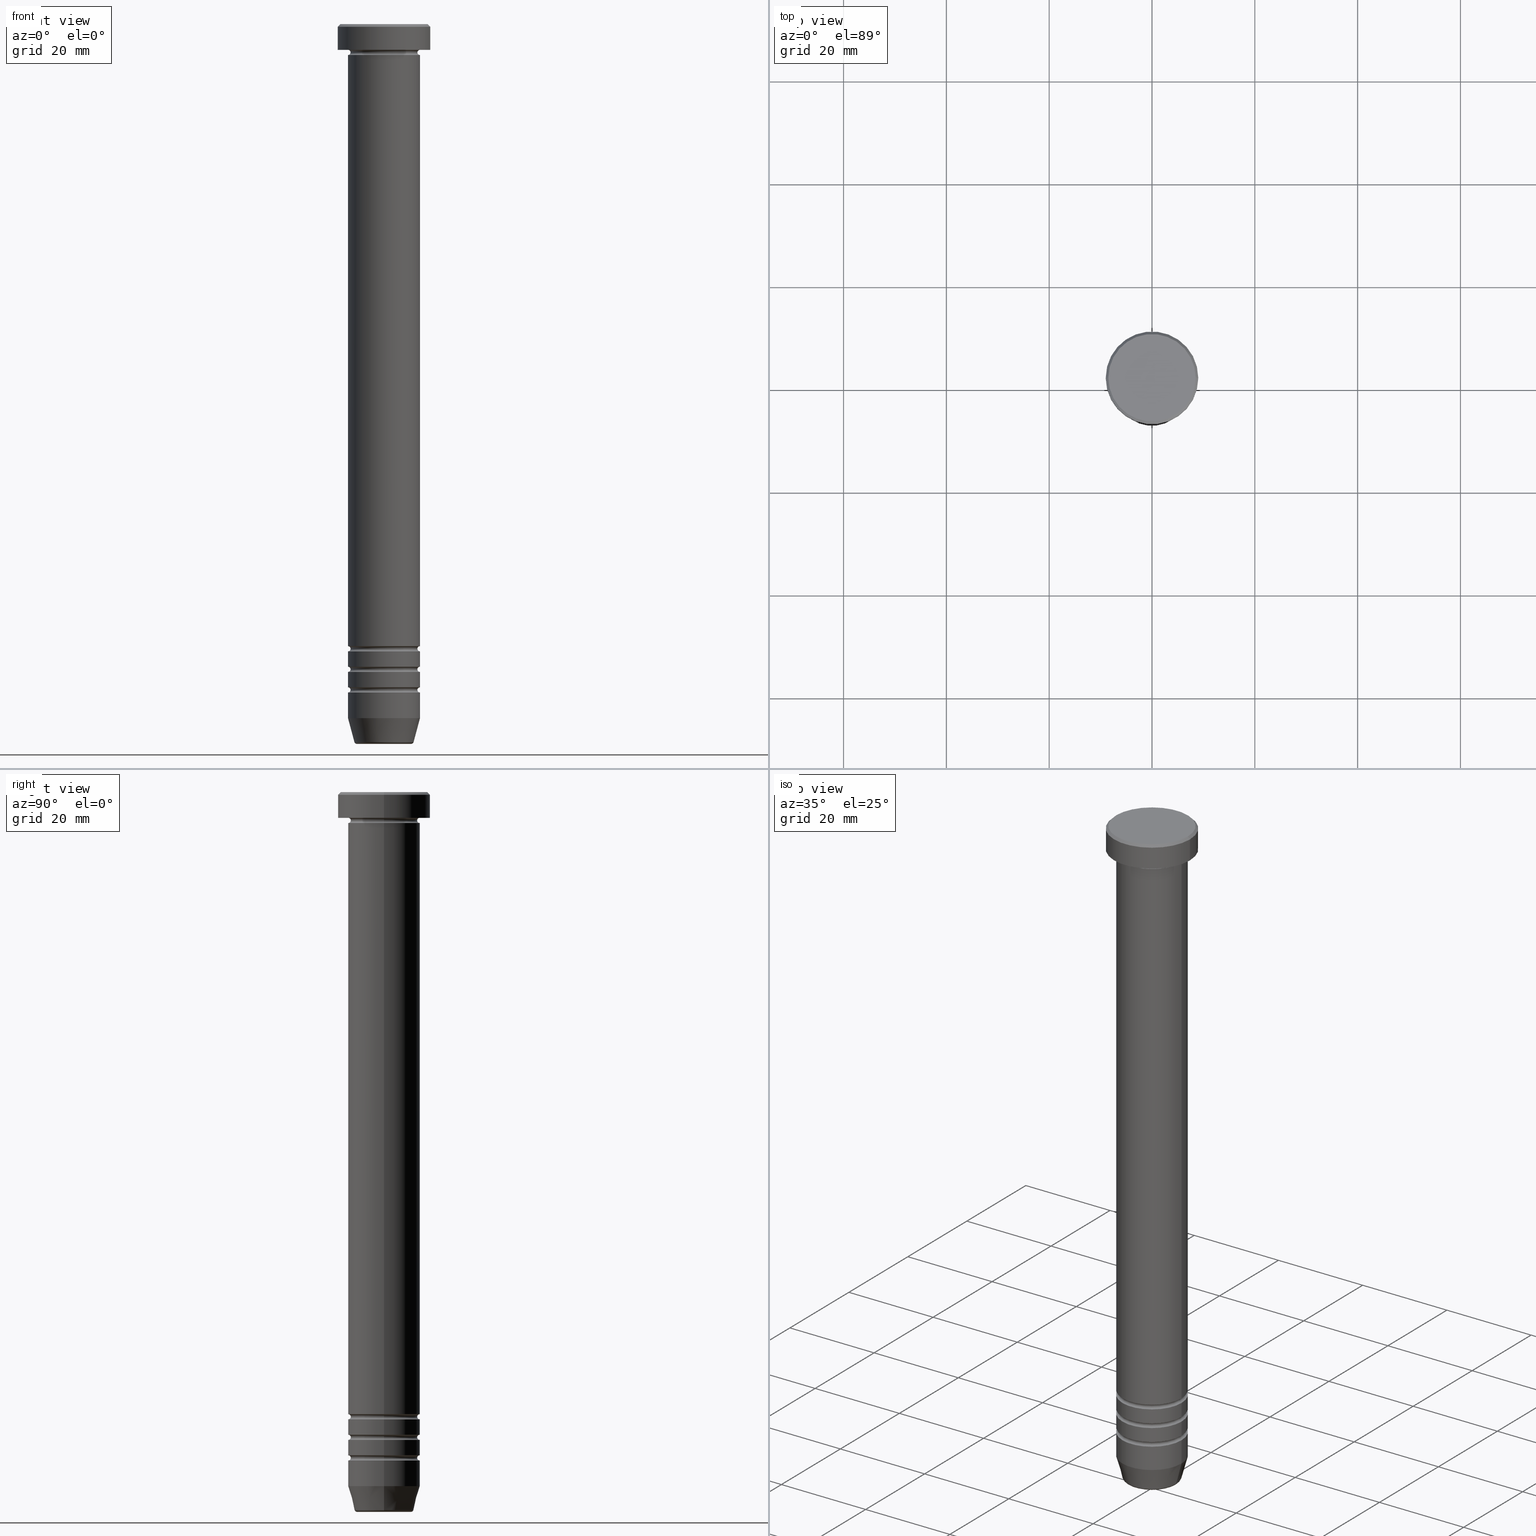
[diagram: canonical four-view strip — front | top / right | iso, engineering-drawing reading convention]
A machine part, canonical four-view strip (front | top / right | iso — engineering-drawing reading convention). The complete STEP part file that produces these views, byte-faithful:
ISO-10303-21;
HEADER;
FILE_DESCRIPTION (( 'STEP AP203' ),
    '1' );
FILE_NAME ('5d6c.STEP',
    '2024-01-02T23:05:50',
    ( '' ),
    ( '' ),
    'SwSTEP 2.0',
    'SolidWorks 2019',
    '' );
FILE_SCHEMA (( 'CONFIG_CONTROL_DESIGN' ));
ENDSEC;

DATA;
#1 = CARTESIAN_POINT ( 'NONE',  ( 0.000000000000000000, 0.000000000000000000, -122.0000000000000000 ) ) ;
#2 = TOROIDAL_SURFACE ( 'NONE', #604, 6.999999999999995559, 0.5000000000000000000 ) ;
#3 = LINE ( 'NONE', #1052, #952 ) ;
#4 = EDGE_CURVE ( 'NONE', #361, #438, #235, .T. ) ;
#5 = FACE_OUTER_BOUND ( 'NONE', #267, .T. ) ;
#6 = FACE_BOUND ( 'NONE', #106, .T. ) ;
#7 = CYLINDRICAL_SURFACE ( 'NONE', #530, 7.000000000000000000 ) ;
#8 = ADVANCED_FACE ( 'NONE', ( #28 ), #520, .F. ) ;
#9 = CARTESIAN_POINT ( 'NONE',  ( -6.999999999999995559, 0.000000000000000000, -121.5000000000000000 ) ) ;
#10 = AXIS2_PLACEMENT_3D ( 'NONE', #626, #145, #801 ) ;
#11 = DIRECTION ( 'NONE',  ( -1.000000000000000000, 1.224646799147351482E-16, 0.000000000000000000 ) ) ;
#12 = AXIS2_PLACEMENT_3D ( 'NONE', #893, #1059, #234 ) ;
#13 = ORIENTED_EDGE ( 'NONE', *, *, #193, .F. ) ;
#14 = AXIS2_PLACEMENT_3D ( 'NONE', #637, #706, #1025 ) ;
#15 = DIRECTION ( 'NONE',  ( -1.000000000000000000, 0.000000000000000000, -0.000000000000000000 ) ) ;
#16 = DIRECTION ( 'NONE',  ( -1.000000000000000000, -1.224646799147351482E-16, 0.000000000000000000 ) ) ;
#17 = EDGE_CURVE ( 'NONE', #969, #189, #186, .T. ) ;
#18 = DIRECTION ( 'NONE',  ( -0.000000000000000000, -0.000000000000000000, 1.000000000000000000 ) ) ;
#19 = CARTESIAN_POINT ( 'NONE',  ( 0.000000000000000000, 0.000000000000000000, -126.0000000000000000 ) ) ;
#20 = CC_DESIGN_DATE_AND_TIME_ASSIGNMENT ( #277, #627, ( #704 ) ) ;
#21 = DIRECTION ( 'NONE',  ( 1.000000000000000000, 0.000000000000000000, 0.000000000000000000 ) ) ;
#22 = PLANE ( 'NONE',  #129 ) ;
#23 = ORIENTED_EDGE ( 'NONE', *, *, #777, .F. ) ;
#24 = CIRCLE ( 'NONE', #184, 5.276590543854897675 ) ;
#25 = DIRECTION ( 'NONE',  ( -1.000000000000000000, 1.224646799147353454E-16, 0.000000000000000000 ) ) ;
#26 = ADVANCED_FACE ( 'NONE', ( #611 ), #930, .T. ) ;
#27 = AXIS2_PLACEMENT_3D ( 'NONE', #177, #512, #828 ) ;
#28 = FACE_OUTER_BOUND ( 'NONE', #988, .T. ) ;
#29 = EDGE_LOOP ( 'NONE', ( #192, #218, #609, #547 ) ) ;
#30 = DIRECTION ( 'NONE',  ( 0.000000000000000000, 0.000000000000000000, -1.000000000000000000 ) ) ;
#31 = EDGE_CURVE ( 'NONE', #535, #794, #881, .T. ) ;
#32 = ORIENTED_EDGE ( 'NONE', *, *, #672, .T. ) ;
#33 = ORIENTED_EDGE ( 'NONE', *, *, #138, .T. ) ;
#34 = ORIENTED_EDGE ( 'NONE', *, *, #472, .F. ) ;
#35 = FACE_OUTER_BOUND ( 'NONE', #618, .T. ) ;
#36 = ORIENTED_EDGE ( 'NONE', *, *, #664, .T. ) ;
#37 = ORIENTED_EDGE ( 'NONE', *, *, #178, .F. ) ;
#38 = DIRECTION ( 'NONE',  ( -0.000000000000000000, -0.000000000000000000, 1.000000000000000000 ) ) ;
#39 = AXIS2_PLACEMENT_3D ( 'NONE', #619, #383, #1043 ) ;
#40 = AXIS2_PLACEMENT_3D ( 'NONE', #949, #475, #389 ) ;
#41 = DIRECTION ( 'NONE',  ( 1.000000000000000000, 0.000000000000000000, 0.000000000000000000 ) ) ;
#42 = CIRCLE ( 'NONE', #27, 6.999999999999998224 ) ;
#43 = ADVANCED_FACE ( 'NONE', ( #848 ), #22, .F. ) ;
#44 = ORIENTED_EDGE ( 'NONE', *, *, #442, .F. ) ;
#45 = CARTESIAN_POINT ( 'NONE',  ( 0.000000000000000000, 0.000000000000000000, -121.5000000000000000 ) ) ;
#46 = CYLINDRICAL_SURFACE ( 'NONE', #515, 6.999999999999999112 ) ;
#47 = ORIENTED_EDGE ( 'NONE', *, *, #909, .F. ) ;
#48 = EDGE_CURVE ( 'NONE', #963, #996, #731, .T. ) ;
#49 = CARTESIAN_POINT ( 'NONE',  ( 0.000000000000000000, 0.000000000000000000, 0.000000000000000000 ) ) ;
#50 = CARTESIAN_POINT ( 'NONE',  ( 9.000000000000000000, 0.000000000000000000, 0.000000000000000000 ) ) ;
#51 = VERTEX_POINT ( 'NONE', #210 ) ;
#52 = ORIENTED_EDGE ( 'NONE', *, *, #1049, .T. ) ;
#53 = DIRECTION ( 'NONE',  ( -0.000000000000000000, -0.000000000000000000, 1.000000000000000000 ) ) ;
#54 = CIRCLE ( 'NONE', #200, 7.000000000000000000 ) ;
#55 = DIRECTION ( 'NONE',  ( 0.000000000000000000, 0.000000000000000000, -1.000000000000000000 ) ) ;
#56 = ADVANCED_FACE ( 'NONE', ( #311 ), #792, .T. ) ;
#57 = AXIS2_PLACEMENT_3D ( 'NONE', #81, #157, #824 ) ;
#58 = AXIS2_PLACEMENT_3D ( 'NONE', #231, #38, #562 ) ;
#59 = PERSON ( 'NEUR�EN�', 'NEUR�EN�', 'NEUR�EN�', ('NEUR�EN�'), ('NEUR�EN�'), ('NEUR�EN�') ) ;
#60 = CARTESIAN_POINT ( 'NONE',  ( -7.000000000000000888, 0.000000000000000000, -5.000000000000000888 ) ) ;
#61 = LINE ( 'NONE', #707, #302 ) ;
#62 = CC_DESIGN_DATE_AND_TIME_ASSIGNMENT ( #96, #283, ( #845 ) ) ;
#63 = APPROVAL_PERSON_ORGANIZATION ( #127, #941, #536 ) ;
#64 = VECTOR ( 'NONE', #993, 1000.000000000000000 ) ;
#65 = DIRECTION ( 'NONE',  ( -1.000000000000000000, 0.000000000000000000, 0.000000000000000000 ) ) ;
#66 = CARTESIAN_POINT ( 'NONE',  ( 9.000000000000000000, 0.000000000000000000, -5.000000000000000000 ) ) ;
#67 = CARTESIAN_POINT ( 'NONE',  ( 6.999999999999995559, 8.572527594031467273E-16, -121.5000000000000000 ) ) ;
#68 = FACE_OUTER_BOUND ( 'NONE', #353, .T. ) ;
#69 = EDGE_LOOP ( 'NONE', ( #264, #898, #183, #887 ) ) ;
#70 = DIRECTION ( 'NONE',  ( -1.000000000000000000, 1.224646799147351482E-16, 0.000000000000000000 ) ) ;
#71 = CARTESIAN_POINT ( 'NONE',  ( 0.000000000000000000, 0.000000000000000000, -121.5000000000000000 ) ) ;
#72 = PLANE ( 'NONE',  #401 ) ;
#73 = AXIS2_PLACEMENT_3D ( 'NONE', #657, #581, #669 ) ;
#74 = EDGE_LOOP ( 'NONE', ( #771, #160, #465, #265 ) ) ;
#75 = CARTESIAN_POINT ( 'NONE',  ( 0.000000000000000000, 0.000000000000000000, 0.000000000000000000 ) ) ;
#76 = CIRCLE ( 'NONE', #582, 7.000000000000000000 ) ;
#77 = EDGE_CURVE ( 'NONE', #214, #812, #957, .T. ) ;
#78 = ORIENTED_EDGE ( 'NONE', *, *, #108, .F. ) ;
#79 = AXIS2_PLACEMENT_3D ( 'NONE', #205, #458, #873 ) ;
#80 = DIRECTION ( 'NONE',  ( -0.000000000000000000, -0.000000000000000000, 1.000000000000000000 ) ) ;
#81 = CARTESIAN_POINT ( 'NONE',  ( 0.000000000000000000, 0.000000000000000000, -139.6294095225512706 ) ) ;
#82 = DIRECTION ( 'NONE',  ( -0.000000000000000000, -0.000000000000000000, 1.000000000000000000 ) ) ;
#83 = EDGE_LOOP ( 'NONE', ( #137, #580, #198, #698 ) ) ;
#84 = TOROIDAL_SURFACE ( 'NONE', #790, 5.276590543854897675, 0.5000000000000000000 ) ;
#85 = ORIENTED_EDGE ( 'NONE', *, *, #395, .F. ) ;
#86 = DIRECTION ( 'NONE',  ( -0.000000000000000000, -0.000000000000000000, 1.000000000000000000 ) ) ;
#87 = ADVANCED_FACE ( 'NONE', ( #222 ), #112, .T. ) ;
#88 = CIRCLE ( 'NONE', #689, 0.5000000000000004441 ) ;
#89 = DIRECTION ( 'NONE',  ( 1.000000000000000000, 0.000000000000000000, 0.000000000000000000 ) ) ;
#90 = CARTESIAN_POINT ( 'NONE',  ( 7.000000000000000888, 8.572527594031474176E-16, -5.500000000000001776 ) ) ;
#91 = DIRECTION ( 'NONE',  ( 1.224646799147353207E-16, 1.000000000000000000, 0.000000000000000000 ) ) ;
#92 = CARTESIAN_POINT ( 'NONE',  ( 7.000000000000000000, 0.000000000000000000, -134.9999999999999716 ) ) ;
#93 = FACE_OUTER_BOUND ( 'NONE', #634, .T. ) ;
#94 = ADVANCED_FACE ( 'NONE', ( #463 ), #1037, .T. ) ;
#95 = DIRECTION ( 'NONE',  ( -0.000000000000000000, -0.000000000000000000, 1.000000000000000000 ) ) ;
#96 = DATE_AND_TIME ( #1017, #491 ) ;
#97 = AXIS2_PLACEMENT_3D ( 'NONE', #800, #722, #65 ) ;
#98 = DIRECTION ( 'NONE',  ( -1.000000000000000000, -1.224646799147351482E-16, 0.000000000000000000 ) ) ;
#99 = ORIENTED_EDGE ( 'NONE', *, *, #565, .F. ) ;
#100 = EDGE_CURVE ( 'NONE', #219, #361, #54, .T. ) ;
#101 = AXIS2_PLACEMENT_3D ( 'NONE', #75, #734, #330 ) ;
#102 = DIRECTION ( 'NONE',  ( -0.000000000000000000, -1.000000000000000000, -0.000000000000000000 ) ) ;
#103 = ORIENTED_EDGE ( 'NONE', *, *, #922, .F. ) ;
#104 = CARTESIAN_POINT ( 'NONE',  ( 0.000000000000000000, 0.000000000000000000, 0.000000000000000000 ) ) ;
#105 = VERTEX_POINT ( 'NONE', #295 ) ;
#106 = EDGE_LOOP ( 'NONE', ( #113, #525 ) ) ;
#107 = AXIS2_PLACEMENT_3D ( 'NONE', #588, #646, #967 ) ;
#108 = EDGE_CURVE ( 'NONE', #794, #489, #61, .T. ) ;
#109 = DIRECTION ( 'NONE',  ( 1.000000000000000000, 0.000000000000000000, 0.000000000000000000 ) ) ;
#110 = AXIS2_PLACEMENT_3D ( 'NONE', #287, #629, #468 ) ;
#111 = ORIENTED_EDGE ( 'NONE', *, *, #852, .T. ) ;
#112 = CONICAL_SURFACE ( 'NONE', #529, 8.500000000000003553, 0.7853981633974482790 ) ;
#113 = ORIENTED_EDGE ( 'NONE', *, *, #565, .T. ) ;
#114 = APPROVAL_PERSON_ORGANIZATION ( #696, #532, #632 ) ;
#115 = CARTESIAN_POINT ( 'NONE',  ( 6.999999999999992895, 0.000000000000000000, -129.0000000000000000 ) ) ;
#116 = CARTESIAN_POINT ( 'NONE',  ( 0.000000000000000000, 0.000000000000000000, -27.00000000000000000 ) ) ;
#117 = SECURITY_CLASSIFICATION_LEVEL ( 'unclassified' ) ;
#118 = ORIENTED_EDGE ( 'NONE', *, *, #48, .F. ) ;
#119 = CARTESIAN_POINT ( 'NONE',  ( -6.499999999999995559, 8.266365894244627431E-16, -129.5000000000000000 ) ) ;
#120 = CYLINDRICAL_SURFACE ( 'NONE', #747, 7.000000000000000000 ) ;
#121 = PERSON_AND_ORGANIZATION_ROLE ( 'creator' ) ;
#122 = ADVANCED_FACE ( 'NONE', ( #563 ), #903, .F. ) ;
#123 = ORIENTED_EDGE ( 'NONE', *, *, #77, .F. ) ;
#124 = CARTESIAN_POINT ( 'NONE',  ( -7.000000000000000000, 8.572527594031473190E-16, -27.00000000000000000 ) ) ;
#125 = CIRCLE ( 'NONE', #446, 5.276590543854897675 ) ;
#126 = CARTESIAN_POINT ( 'NONE',  ( -9.000000000000000000, 1.102182119232617714E-15, -0.4999999999999952260 ) ) ;
#127 = PERSON_AND_ORGANIZATION ( #59, #855 ) ;
#128 = CIRCLE ( 'NONE', #357, 0.5000000000000004441 ) ;
#129 = AXIS2_PLACEMENT_3D ( 'NONE', #767, #367, #1016 ) ;
#130 = ORIENTED_EDGE ( 'NONE', *, *, #687, .T. ) ;
#131 = ADVANCED_FACE ( 'NONE', ( #1026 ), #445, .F. ) ;
#132 = VERTEX_POINT ( 'NONE', #126 ) ;
#133 = ORIENTED_EDGE ( 'NONE', *, *, #658, .F. ) ;
#134 = DIRECTION ( 'NONE',  ( -0.000000000000000000, -0.000000000000000000, 1.000000000000000000 ) ) ;
#135 = DIRECTION ( 'NONE',  ( 1.000000000000000000, 0.000000000000000000, 0.000000000000000000 ) ) ;
#136 = ORIENTED_EDGE ( 'NONE', *, *, #368, .T. ) ;
#137 = ORIENTED_EDGE ( 'NONE', *, *, #457, .F. ) ;
#138 = EDGE_CURVE ( 'NONE', #374, #364, #667, .T. ) ;
#139 = DIRECTION ( 'NONE',  ( 1.000000000000000000, 0.000000000000000000, 0.000000000000000000 ) ) ;
#140 = CARTESIAN_POINT ( 'NONE',  ( 0.000000000000000000, 0.000000000000000000, -5.500000000000001776 ) ) ;
#141 = ORIENTED_EDGE ( 'NONE', *, *, #395, .T. ) ;
#142 = DIRECTION ( 'NONE',  ( 1.000000000000000000, 0.000000000000000000, 0.000000000000000000 ) ) ;
#143 = EDGE_CURVE ( 'NONE', #755, #374, #482, .T. ) ;
#144 = CIRCLE ( 'NONE', #877, 0.5000000000000004441 ) ;
#145 = DIRECTION ( 'NONE',  ( 1.224646799147353207E-16, 1.000000000000000000, 0.000000000000000000 ) ) ;
#146 = CIRCLE ( 'NONE', #341, 7.000000000000000000 ) ;
#147 = AXIS2_PLACEMENT_3D ( 'NONE', #500, #666, #977 ) ;
#148 = ORIENTED_EDGE ( 'NONE', *, *, #225, .T. ) ;
#149 = CARTESIAN_POINT ( 'NONE',  ( 0.000000000000000000, 0.000000000000000000, -140.0000000000000000 ) ) ;
#150 = EDGE_LOOP ( 'NONE', ( #329, #156 ) ) ;
#151 = CARTESIAN_POINT ( 'NONE',  ( -5.660254037844373087, 6.931811989806993503E-16, -140.0000000000000000 ) ) ;
#152 = DIRECTION ( 'NONE',  ( -1.224646799147353207E-16, 1.000000000000000000, 0.000000000000000000 ) ) ;
#153 = ORIENTED_EDGE ( 'NONE', *, *, #927, .T. ) ;
#154 = CARTESIAN_POINT ( 'NONE',  ( 6.999999999999999112, 0.000000000000000000, 0.000000000000000000 ) ) ;
#155 = DIRECTION ( 'NONE',  ( -0.000000000000000000, -0.000000000000000000, 1.000000000000000000 ) ) ;
#156 = ORIENTED_EDGE ( 'NONE', *, *, #31, .F. ) ;
#157 = DIRECTION ( 'NONE',  ( -0.000000000000000000, -0.000000000000000000, 1.000000000000000000 ) ) ;
#158 = CARTESIAN_POINT ( 'NONE',  ( -9.000000000000000000, 1.102182119232617714E-15, 0.000000000000000000 ) ) ;
#159 = ADVANCED_FACE ( 'NONE', ( #400 ), #120, .T. ) ;
#160 = ORIENTED_EDGE ( 'NONE', *, *, #857, .T. ) ;
#161 = ORIENTED_EDGE ( 'NONE', *, *, #822, .T. ) ;
#162 = CYLINDRICAL_SURFACE ( 'NONE', #293, 6.999999999999996447 ) ;
#163 = CARTESIAN_POINT ( 'NONE',  ( -7.000000000000000000, 8.572527594031473190E-16, 0.000000000000000000 ) ) ;
#164 = DIRECTION ( 'NONE',  ( 0.000000000000000000, 0.000000000000000000, -1.000000000000000000 ) ) ;
#165 = CARTESIAN_POINT ( 'NONE',  ( 6.999999999999995559, 0.000000000000000000, -125.5000000000000000 ) ) ;
#166 = AXIS2_PLACEMENT_3D ( 'NONE', #1008, #920, #21 ) ;
#167 = CC_DESIGN_PERSON_AND_ORGANIZATION_ASSIGNMENT ( #337, #827, ( #1040 ) ) ;
#168 = CARTESIAN_POINT ( 'NONE',  ( 0.000000000000000000, 0.000000000000000000, -129.5000000000000000 ) ) ;
#169 = CIRCLE ( 'NONE', #477, 7.000000000000000000 ) ;
#170 = AXIS2_PLACEMENT_3D ( 'NONE', #844, #681, #606 ) ;
#171 = CARTESIAN_POINT ( 'NONE',  ( -7.000000000000000000, 8.572527594031472204E-16, -27.00000000000000000 ) ) ;
#172 = CARTESIAN_POINT ( 'NONE',  ( 0.000000000000000000, 0.000000000000000000, -27.00000000000000000 ) ) ;
#173 = CARTESIAN_POINT ( 'NONE',  ( -7.000000000000000888, 0.000000000000000000, -5.500000000000001776 ) ) ;
#174 = DIRECTION ( 'NONE',  ( 1.000000000000000000, 0.000000000000000000, 0.000000000000000000 ) ) ;
#175 = VECTOR ( 'NONE', #505, 1000.000000000000114 ) ;
#176 = ORIENTED_EDGE ( 'NONE', *, *, #516, .F. ) ;
#177 = CARTESIAN_POINT ( 'NONE',  ( 0.000000000000000000, 0.000000000000000000, -125.0000000000000000 ) ) ;
#178 = EDGE_CURVE ( 'NONE', #346, #620, #144, .T. ) ;
#179 = FACE_OUTER_BOUND ( 'NONE', #929, .T. ) ;
#180 = DIRECTION ( 'NONE',  ( -1.000000000000000000, 1.224646799147353454E-16, 0.000000000000000000 ) ) ;
#181 = DIRECTION ( 'NONE',  ( 1.000000000000000000, 0.000000000000000000, 0.000000000000000000 ) ) ;
#182 = ADVANCED_FACE ( 'NONE', ( #543 ), #46, .T. ) ;
#183 = ORIENTED_EDGE ( 'NONE', *, *, #307, .F. ) ;
#184 = AXIS2_PLACEMENT_3D ( 'NONE', #680, #593, #925 ) ;
#185 = AXIS2_PLACEMENT_3D ( 'NONE', #966, #233, #417 ) ;
#186 = CIRCLE ( 'NONE', #785, 7.000000000000000000 ) ;
#187 = DIRECTION ( 'NONE',  ( 1.000000000000000000, 0.000000000000000000, 0.000000000000000000 ) ) ;
#188 = EDGE_LOOP ( 'NONE', ( #488, #832, #695, #33 ) ) ;
#189 = VERTEX_POINT ( 'NONE', #289 ) ;
#190 = DIRECTION ( 'NONE',  ( 0.000000000000000000, 0.000000000000000000, -1.000000000000000000 ) ) ;
#191 = AXIS2_PLACEMENT_3D ( 'NONE', #259, #95, #1060 ) ;
#192 = ORIENTED_EDGE ( 'NONE', *, *, #795, .F. ) ;
#193 = EDGE_CURVE ( 'NONE', #755, #435, #1020, .T. ) ;
#194 = VERTEX_POINT ( 'NONE', #942 ) ;
#195 = DIRECTION ( 'NONE',  ( 1.224646799147353207E-16, 1.000000000000000000, 0.000000000000000000 ) ) ;
#196 = DIRECTION ( 'NONE',  ( 0.000000000000000000, -0.000000000000000000, 1.000000000000000000 ) ) ;
#197 = ORIENTED_EDGE ( 'NONE', *, *, #216, .T. ) ;
#198 = ORIENTED_EDGE ( 'NONE', *, *, #1004, .T. ) ;
#199 = CC_DESIGN_PERSON_AND_ORGANIZATION_ASSIGNMENT ( #1011, #206, ( #845 ) ) ;
#200 = AXIS2_PLACEMENT_3D ( 'NONE', #796, #379, #41 ) ;
#201 = ORIENTED_EDGE ( 'NONE', *, *, #352, .T. ) ;
#202 = TOROIDAL_SURFACE ( 'NONE', #728, 6.999999999999995559, 0.5000000000000000000 ) ;
#203 = AXIS2_PLACEMENT_3D ( 'NONE', #332, #717, #645 ) ;
#204 = CARTESIAN_POINT ( 'NONE',  ( -6.999999999999996447, 8.572527594031468259E-16, 0.000000000000000000 ) ) ;
#205 = CARTESIAN_POINT ( 'NONE',  ( 0.000000000000000000, 0.000000000000000000, -121.5000000000000000 ) ) ;
#206 = PERSON_AND_ORGANIZATION_ROLE ( 'creator' ) ;
#207 = EDGE_LOOP ( 'NONE', ( #274, #197, #841, #1001 ) ) ;
#208 = CARTESIAN_POINT ( 'NONE',  ( 5.759553456999428001, 0.000000000000000000, -139.6294095225512706 ) ) ;
#209 = EDGE_CURVE ( 'NONE', #534, #438, #1002, .T. ) ;
#210 = CARTESIAN_POINT ( 'NONE',  ( -5.276590543854897675, 6.757689212787761971E-16, -140.0000000000000000 ) ) ;
#211 = CIRCLE ( 'NONE', #191, 9.000000000000000000 ) ;
#212 = DATE_AND_TIME ( #943, #312 ) ;
#213 = EDGE_LOOP ( 'NONE', ( #501, #452, #959, #615 ) ) ;
#214 = VERTEX_POINT ( 'NONE', #66 ) ;
#215 = CARTESIAN_POINT ( 'NONE',  ( 0.000000000000000000, 0.000000000000000000, -125.5000000000000000 ) ) ;
#216 = EDGE_CURVE ( 'NONE', #947, #944, #508, .T. ) ;
#217 = CARTESIAN_POINT ( 'NONE',  ( 0.000000000000000000, 0.000000000000000000, 0.000000000000000000 ) ) ;
#218 = ORIENTED_EDGE ( 'NONE', *, *, #388, .T. ) ;
#219 = VERTEX_POINT ( 'NONE', #899 ) ;
#220 = DIRECTION ( 'NONE',  ( 1.000000000000000000, 0.000000000000000000, 0.000000000000000000 ) ) ;
#221 = AXIS2_PLACEMENT_3D ( 'NONE', #610, #195, #25 ) ;
#222 = FACE_OUTER_BOUND ( 'NONE', #649, .T. ) ;
#223 = AXIS2_PLACEMENT_3D ( 'NONE', #45, #956, #786 ) ;
#224 = CLOSED_SHELL ( 'NONE', ( #709, #487, #931, #284, #402, #450, #26, #577, #714, #159, #8, #122, #87 ) ) ;
#225 = EDGE_CURVE ( 'NONE', #51, #346, #125, .T. ) ;
#226 = CARTESIAN_POINT ( 'NONE',  ( 7.000000000000000888, 0.000000000000000000, -5.500000000000001776 ) ) ;
#227 = DIRECTION ( 'NONE',  ( -0.000000000000000000, -0.000000000000000000, 1.000000000000000000 ) ) ;
#228 = ORIENTED_EDGE ( 'NONE', *, *, #108, .T. ) ;
#229 = EDGE_CURVE ( 'NONE', #364, #374, #668, .T. ) ;
#230 = ORIENTED_EDGE ( 'NONE', *, *, #625, .F. ) ;
#231 = CARTESIAN_POINT ( 'NONE',  ( 0.000000000000000000, 0.000000000000000000, -126.0000000000000000 ) ) ;
#232 = CARTESIAN_POINT ( 'NONE',  ( 0.000000000000000000, 0.000000000000000000, -125.5000000000000000 ) ) ;
#233 = DIRECTION ( 'NONE',  ( -0.000000000000000000, -0.000000000000000000, 1.000000000000000000 ) ) ;
#234 = DIRECTION ( 'NONE',  ( 0.000000000000000000, 0.000000000000000000, -1.000000000000000000 ) ) ;
#235 = CIRCLE ( 'NONE', #170, 0.5000000000000004441 ) ;
#236 = MECHANICAL_CONTEXT ( 'NONE', #858, 'mechanical' ) ;
#237 = DIRECTION ( 'NONE',  ( -0.000000000000000000, -0.000000000000000000, 1.000000000000000000 ) ) ;
#238 = FACE_OUTER_BOUND ( 'NONE', #416, .T. ) ;
#239 = EDGE_CURVE ( 'NONE', #794, #535, #146, .T. ) ;
#240 = DIRECTION ( 'NONE',  ( 0.000000000000000000, 0.000000000000000000, -1.000000000000000000 ) ) ;
#241 = LOCAL_TIME ( 0, 5, 50.00000000000000000, #459 ) ;
#242 = CIRCLE ( 'NONE', #718, 0.5000000000000004441 ) ;
#243 = DIRECTION ( 'NONE',  ( -1.000000000000000000, 0.000000000000000000, 0.000000000000000000 ) ) ;
#244 = CARTESIAN_POINT ( 'NONE',  ( 0.000000000000000000, 0.000000000000000000, 0.000000000000000000 ) ) ;
#245 = ORIENTED_EDGE ( 'NONE', *, *, #545, .T. ) ;
#246 = DIRECTION ( 'NONE',  ( 1.000000000000000000, 0.000000000000000000, 0.000000000000000000 ) ) ;
#247 = EDGE_CURVE ( 'NONE', #798, #809, #393, .T. ) ;
#248 = DIRECTION ( 'NONE',  ( -1.000000000000000000, 0.000000000000000000, 0.000000000000000000 ) ) ;
#249 = LINE ( 'NONE', #154, #1044 ) ;
#250 = CYLINDRICAL_SURFACE ( 'NONE', #432, 7.000000000000000000 ) ;
#251 = DIRECTION ( 'NONE',  ( 1.000000000000000000, 0.000000000000000000, 0.000000000000000000 ) ) ;
#252 = CARTESIAN_POINT ( 'NONE',  ( 0.000000000000000000, 0.000000000000000000, -139.5000000000000000 ) ) ;
#253 = CIRCLE ( 'NONE', #651, 0.5000000000000004441 ) ;
#254 = CONICAL_SURFACE ( 'NONE', #203, 8.500000000000003553, 0.7853981633974482790 ) ;
#255 = EDGE_CURVE ( 'NONE', #684, #194, #1054, .T. ) ;
#256 = CARTESIAN_POINT ( 'NONE',  ( 6.999999999999996447, 0.000000000000000000, 0.000000000000000000 ) ) ;
#257 = DIRECTION ( 'NONE',  ( 0.000000000000000000, 0.000000000000000000, -1.000000000000000000 ) ) ;
#258 = CARTESIAN_POINT ( 'NONE',  ( 0.000000000000000000, 0.000000000000000000, 0.000000000000000000 ) ) ;
#259 = CARTESIAN_POINT ( 'NONE',  ( 0.000000000000000000, 0.000000000000000000, -5.000000000000000000 ) ) ;
#260 = LINE ( 'NONE', #1050, #175 ) ;
#261 = EDGE_CURVE ( 'NONE', #947, #620, #935, .T. ) ;
#262 = FACE_OUTER_BOUND ( 'NONE', #778, .T. ) ;
#263 = DIRECTION ( 'NONE',  ( -0.000000000000000000, -0.000000000000000000, 1.000000000000000000 ) ) ;
#264 = ORIENTED_EDGE ( 'NONE', *, *, #545, .F. ) ;
#265 = ORIENTED_EDGE ( 'NONE', *, *, #516, .T. ) ;
#266 = DIRECTION ( 'NONE',  ( 0.000000000000000000, 0.000000000000000000, -1.000000000000000000 ) ) ;
#267 = EDGE_LOOP ( 'NONE', ( #623, #373, #291, #313 ) ) ;
#268 = AXIS2_PLACEMENT_3D ( 'NONE', #780, #642, #539 ) ;
#269 = CIRCLE ( 'NONE', #107, 6.500000000000000888 ) ;
#270 = AXIS2_PLACEMENT_3D ( 'NONE', #550, #134, #392 ) ;
#271 = CARTESIAN_POINT ( 'NONE',  ( 0.000000000000000000, 0.000000000000000000, -5.500000000000001776 ) ) ;
#272 = EDGE_CURVE ( 'NONE', #535, #390, #3, .T. ) ;
#273 = ORIENTED_EDGE ( 'NONE', *, *, #806, .T. ) ;
#274 = ORIENTED_EDGE ( 'NONE', *, *, #759, .T. ) ;
#275 = DIRECTION ( 'NONE',  ( -1.000000000000000000, 0.000000000000000000, 0.000000000000000000 ) ) ;
#276 = DIRECTION ( 'NONE',  ( -0.000000000000000000, -0.000000000000000000, 1.000000000000000000 ) ) ;
#277 = DATE_AND_TIME ( #554, #241 ) ;
#278 = ORIENTED_EDGE ( 'NONE', *, *, #687, .F. ) ;
#279 = ADVANCED_FACE ( 'NONE', ( #326 ), #614, .F. ) ;
#280 = ORIENTED_EDGE ( 'NONE', *, *, #437, .T. ) ;
#281 = DIRECTION ( 'NONE',  ( -0.000000000000000000, -0.000000000000000000, 1.000000000000000000 ) ) ;
#282 = ORIENTED_EDGE ( 'NONE', *, *, #894, .T. ) ;
#283 = DATE_TIME_ROLE ( 'creation_date' ) ;
#284 = ADVANCED_FACE ( 'NONE', ( #179 ), #7, .T. ) ;
#285 = CIRCLE ( 'NONE', #878, 0.5000000000000004441 ) ;
#286 = VECTOR ( 'NONE', #314, 1000.000000000000114 ) ;
#287 = CARTESIAN_POINT ( 'NONE',  ( 0.000000000000000000, 0.000000000000000000, 0.000000000000000000 ) ) ;
#288 = AXIS2_PLACEMENT_3D ( 'NONE', #116, #263, #758 ) ;
#289 = CARTESIAN_POINT ( 'NONE',  ( -7.000000000000000000, 8.572527594031472204E-16, -126.0000000000000000 ) ) ;
#290 = PERSON_AND_ORGANIZATION_ROLE ( 'design_supplier' ) ;
#291 = ORIENTED_EDGE ( 'NONE', *, *, #418, .T. ) ;
#292 = EDGE_CURVE ( 'NONE', #807, #361, #412, .T. ) ;
#293 = AXIS2_PLACEMENT_3D ( 'NONE', #403, #746, #174 ) ;
#294 = DIRECTION ( 'NONE',  ( 0.000000000000000000, 0.000000000000000000, -1.000000000000000000 ) ) ;
#295 = CARTESIAN_POINT ( 'NONE',  ( 7.000000000000000888, 8.572527594031474176E-16, -5.000000000000000888 ) ) ;
#296 = PERSON_AND_ORGANIZATION_ROLE ( 'classification_officer' ) ;
#297 = VERTEX_POINT ( 'NONE', #663 ) ;
#298 = CYLINDRICAL_SURFACE ( 'NONE', #110, 9.000000000000000000 ) ;
#299 = DIRECTION ( 'NONE',  ( 0.000000000000000000, 0.000000000000000000, -1.000000000000000000 ) ) ;
#300 = AXIS2_PLACEMENT_3D ( 'NONE', #140, #299, #876 ) ;
#301 = FACE_OUTER_BOUND ( 'NONE', #433, .T. ) ;
#302 = VECTOR ( 'NONE', #396, 1000.000000000000000 ) ;
#303 = TOROIDAL_SURFACE ( 'NONE', #905, 7.000000000000000888, 0.5000000000000000000 ) ;
#304 = DIRECTION ( 'NONE',  ( 0.000000000000000000, 0.000000000000000000, -1.000000000000000000 ) ) ;
#305 = EDGE_LOOP ( 'NONE', ( #409, #742, #768, #422 ) ) ;
#306 = AXIS2_PLACEMENT_3D ( 'NONE', #557, #868, #1030 ) ;
#307 = EDGE_CURVE ( 'NONE', #438, #534, #865, .T. ) ;
#308 = ORIENTED_EDGE ( 'NONE', *, *, #1013, .T. ) ;
#309 = DIRECTION ( 'NONE',  ( -1.000000000000000000, 0.000000000000000000, 0.000000000000000000 ) ) ;
#310 = AXIS2_PLACEMENT_3D ( 'NONE', #165, #732, #908 ) ;
#311 = FACE_OUTER_BOUND ( 'NONE', #892, .T. ) ;
#312 = LOCAL_TIME ( 0, 5, 50.00000000000000000, #607 ) ;
#313 = ORIENTED_EDGE ( 'NONE', *, *, #209, .T. ) ;
#314 = DIRECTION ( 'NONE',  ( 0.2588190451025215166, 0.000000000000000000, 0.9659258262890679791 ) ) ;
#315 = DIRECTION ( 'NONE',  ( 1.000000000000000000, 0.000000000000000000, 0.000000000000000000 ) ) ;
#316 = ORIENTED_EDGE ( 'NONE', *, *, #1045, .T. ) ;
#317 = ADVANCED_FACE ( 'NONE', ( #93 ), #697, .F. ) ;
#318 = LINE ( 'NONE', #650, #835 ) ;
#319 = DIRECTION ( 'NONE',  ( -0.000000000000000000, -0.000000000000000000, 1.000000000000000000 ) ) ;
#320 = CIRCLE ( 'NONE', #447, 6.999999999999992895 ) ;
#321 = DIRECTION ( 'NONE',  ( -1.000000000000000000, 0.000000000000000000, -0.000000000000000000 ) ) ;
#322 = AXIS2_PLACEMENT_3D ( 'NONE', #727, #257, #982 ) ;
#323 =( NAMED_UNIT ( * ) SI_UNIT ( $, .STERADIAN. ) SOLID_ANGLE_UNIT ( ) );
#324 = LINE ( 'NONE', #163, #504 ) ;
#325 = ADVANCED_FACE ( 'NONE', ( #238 ), #202, .F. ) ;
#326 = FACE_OUTER_BOUND ( 'NONE', #853, .T. ) ;
#327 = CARTESIAN_POINT ( 'NONE',  ( 6.999999999999995559, 0.000000000000000000, -121.5000000000000000 ) ) ;
#328 = CIRCLE ( 'NONE', #823, 9.000000000000000000 ) ;
#329 = ORIENTED_EDGE ( 'NONE', *, *, #239, .F. ) ;
#330 = DIRECTION ( 'NONE',  ( 1.000000000000000000, 0.000000000000000000, 0.000000000000000000 ) ) ;
#331 = ORIENTED_EDGE ( 'NONE', *, *, #555, .T. ) ;
#332 = CARTESIAN_POINT ( 'NONE',  ( 0.000000000000000000, 0.000000000000000000, 0.000000000000000000 ) ) ;
#333 = DIRECTION ( 'NONE',  ( 1.000000000000000000, 0.000000000000000000, 0.000000000000000000 ) ) ;
#334 = ADVANCED_FACE ( 'NONE', ( #983 ), #833, .T. ) ;
#335 = DIRECTION ( 'NONE',  ( -0.7071067811865474617, 0.000000000000000000, -0.7071067811865474617 ) ) ;
#336 = ORIENTED_EDGE ( 'NONE', *, *, #437, .F. ) ;
#337 = PERSON_AND_ORGANIZATION ( #59, #855 ) ;
#338 = DIRECTION ( 'NONE',  ( -1.000000000000000000, 0.000000000000000000, 0.000000000000000000 ) ) ;
#339 = DIRECTION ( 'NONE',  ( -0.000000000000000000, -0.000000000000000000, 1.000000000000000000 ) ) ;
#340 = DIRECTION ( 'NONE',  ( 0.000000000000000000, 0.000000000000000000, -1.000000000000000000 ) ) ;
#341 = AXIS2_PLACEMENT_3D ( 'NONE', #172, #912, #315 ) ;
#342 = EDGE_CURVE ( 'NONE', #1055, #297, #269, .T. ) ;
#343 = FACE_OUTER_BOUND ( 'NONE', #802, .T. ) ;
#344 = LINE ( 'NONE', #204, #503 ) ;
#345 = CARTESIAN_POINT ( 'NONE',  ( 6.499999999999995559, 0.000000000000000000, -121.5000000000000000 ) ) ;
#346 = VERTEX_POINT ( 'NONE', #571 ) ;
#347 = COORDINATED_UNIVERSAL_TIME_OFFSET ( 1, 0, .AHEAD. ) ;
#348 = AXIS2_PLACEMENT_3D ( 'NONE', #9, #407, #240 ) ;
#349 = CARTESIAN_POINT ( 'NONE',  ( -6.999999999999995559, 0.000000000000000000, -129.5000000000000000 ) ) ;
#350 = DIRECTION ( 'NONE',  ( -0.000000000000000000, -0.000000000000000000, 1.000000000000000000 ) ) ;
#351 = ORIENTED_EDGE ( 'NONE', *, *, #307, .T. ) ;
#352 = EDGE_CURVE ( 'NONE', #541, #438, #797, .T. ) ;
#353 = EDGE_LOOP ( 'NONE', ( #444, #693, #954, #950 ) ) ;
#354 = ORIENTED_EDGE ( 'NONE', *, *, #973, .F. ) ;
#355 = EDGE_LOOP ( 'NONE', ( #517, #148 ) ) ;
#356 = AXIS2_PLACEMENT_3D ( 'NONE', #434, #266, #15 ) ;
#357 = AXIS2_PLACEMENT_3D ( 'NONE', #226, #872, #294 ) ;
#358 = CARTESIAN_POINT ( 'NONE',  ( 6.499999999999995559, 0.000000000000000000, -129.5000000000000000 ) ) ;
#359 = EDGE_CURVE ( 'NONE', #361, #219, #748, .T. ) ;
#360 = CIRCLE ( 'NONE', #769, 7.000000000000000000 ) ;
#361 = VERTEX_POINT ( 'NONE', #690 ) ;
#362 = EDGE_LOOP ( 'NONE', ( #715, #451, #397, #628 ) ) ;
#363 = ORIENTED_EDGE ( 'NONE', *, *, #852, .F. ) ;
#364 = VERTEX_POINT ( 'NONE', #997 ) ;
#365 = DIRECTION ( 'NONE',  ( 1.000000000000000000, 0.000000000000000000, 0.000000000000000000 ) ) ;
#366 = AXIS2_PLACEMENT_3D ( 'NONE', #173, #419, #572 ) ;
#367 = DIRECTION ( 'NONE',  ( 0.000000000000000000, -0.000000000000000000, 1.000000000000000000 ) ) ;
#368 = EDGE_CURVE ( 'NONE', #969, #364, #285, .T. ) ;
#369 = ORIENTED_EDGE ( 'NONE', *, *, #822, .F. ) ;
#370 = DIRECTION ( 'NONE',  ( 1.000000000000000000, 0.000000000000000000, 0.000000000000000000 ) ) ;
#371 = ORIENTED_EDGE ( 'NONE', *, *, #247, .F. ) ;
#372 = CALENDAR_DATE ( 2024, 3, 1 ) ;
#373 = ORIENTED_EDGE ( 'NONE', *, *, #359, .T. ) ;
#374 = VERTEX_POINT ( 'NONE', #443 ) ;
#375 = EDGE_CURVE ( 'NONE', #194, #684, #431, .T. ) ;
#376 = AXIS2_PLACEMENT_3D ( 'NONE', #1048, #339, #566 ) ;
#377 = TOROIDAL_SURFACE ( 'NONE', #223, 6.999999999999995559, 0.5000000000000000000 ) ;
#378 = FACE_OUTER_BOUND ( 'NONE', #917, .T. ) ;
#379 = DIRECTION ( 'NONE',  ( -0.000000000000000000, -0.000000000000000000, 1.000000000000000000 ) ) ;
#380 = ORIENTED_EDGE ( 'NONE', *, *, #229, .F. ) ;
#381 = APPROVAL_PERSON_ORGANIZATION ( #621, #874, #384 ) ;
#382 = DIRECTION ( 'NONE',  ( 0.000000000000000000, 0.000000000000000000, -1.000000000000000000 ) ) ;
#383 = DIRECTION ( 'NONE',  ( -0.000000000000000000, -0.000000000000000000, 1.000000000000000000 ) ) ;
#384 = APPROVAL_ROLE ( '' ) ;
#385 = DESIGN_CONTEXT ( 'detailed design', #603, 'design' ) ;
#386 = ORIENTED_EDGE ( 'NONE', *, *, #885, .T. ) ;
#387 = DIRECTION ( 'NONE',  ( 0.000000000000000000, 0.000000000000000000, -1.000000000000000000 ) ) ;
#388 = EDGE_CURVE ( 'NONE', #944, #807, #1021, .T. ) ;
#389 = DIRECTION ( 'NONE',  ( 1.000000000000000000, 0.000000000000000000, 0.000000000000000000 ) ) ;
#390 = VERTEX_POINT ( 'NONE', #765 ) ;
#391 = ORIENTED_EDGE ( 'NONE', *, *, #359, .F. ) ;
#392 = DIRECTION ( 'NONE',  ( 1.000000000000000000, 0.000000000000000000, 0.000000000000000000 ) ) ;
#393 = CIRCLE ( 'NONE', #548, 8.500000000000003553 ) ;
#394 = CIRCLE ( 'NONE', #97, 5.759553456999428001 ) ;
#395 = EDGE_CURVE ( 'NONE', #996, #963, #413, .T. ) ;
#396 = DIRECTION ( 'NONE',  ( -0.000000000000000000, -0.000000000000000000, 1.000000000000000000 ) ) ;
#397 = ORIENTED_EDGE ( 'NONE', *, *, #178, .T. ) ;
#398 = CARTESIAN_POINT ( 'NONE',  ( 5.660254037844373087, 0.000000000000000000, -140.0000000000000000 ) ) ;
#399 = CC_DESIGN_APPROVAL ( #874, ( #704 ) ) ;
#400 = FACE_OUTER_BOUND ( 'NONE', #569, .T. ) ;
#401 = AXIS2_PLACEMENT_3D ( 'NONE', #659, #589, #321 ) ;
#402 = ADVANCED_FACE ( 'NONE', ( #846 ), #523, .T. ) ;
#403 = CARTESIAN_POINT ( 'NONE',  ( 0.000000000000000000, 0.000000000000000000, 0.000000000000000000 ) ) ;
#404 = VERTEX_POINT ( 'NONE', #439 ) ;
#405 = DIRECTION ( 'NONE',  ( 1.000000000000000000, 0.000000000000000000, 0.000000000000000000 ) ) ;
#406 = DIRECTION ( 'NONE',  ( -0.2588190451025215166, 3.169619151431774802E-17, 0.9659258262890679791 ) ) ;
#407 = DIRECTION ( 'NONE',  ( -0.000000000000000000, -1.000000000000000000, -0.000000000000000000 ) ) ;
#408 = CC_DESIGN_PERSON_AND_ORGANIZATION_ASSIGNMENT ( #781, #296, ( #704 ) ) ;
#409 = ORIENTED_EDGE ( 'NONE', *, *, #216, .F. ) ;
#410 = VERTEX_POINT ( 'NONE', #600 ) ;
#411 = DIRECTION ( 'NONE',  ( -1.000000000000000000, 0.000000000000000000, 0.000000000000000000 ) ) ;
#412 = LINE ( 'NONE', #513, #484 ) ;
#413 = CIRCLE ( 'NONE', #564, 6.499999999999995559 ) ;
#414 = CARTESIAN_POINT ( 'NONE',  ( -5.759553456999428001, 7.812973149831946843E-16, -139.6294095225512706 ) ) ;
#415 = CIRCLE ( 'NONE', #1005, 0.5000000000000004441 ) ;
#416 = EDGE_LOOP ( 'NONE', ( #354, #133, #201, #546 ) ) ;
#417 = DIRECTION ( 'NONE',  ( 1.000000000000000000, 0.000000000000000000, 0.000000000000000000 ) ) ;
#418 = EDGE_CURVE ( 'NONE', #219, #534, #253, .T. ) ;
#419 = DIRECTION ( 'NONE',  ( -0.000000000000000000, -1.000000000000000000, -0.000000000000000000 ) ) ;
#420 = PRODUCT_DEFINITION_FORMATION_WITH_SPECIFIED_SOURCE ( 'LIBOVOLN�', '', #1040, .NOT_KNOWN. ) ;
#421 = CARTESIAN_POINT ( 'NONE',  ( 0.000000000000000000, 0.000000000000000000, 0.000000000000000000 ) ) ;
#422 = ORIENTED_EDGE ( 'NONE', *, *, #388, .F. ) ;
#423 = CARTESIAN_POINT ( 'NONE',  ( 0.000000000000000000, 0.000000000000000000, -5.500000000000001776 ) ) ;
#424 = DIRECTION ( 'NONE',  ( 1.000000000000000000, 0.000000000000000000, 0.000000000000000000 ) ) ;
#425 = EDGE_CURVE ( 'NONE', #346, #51, #24, .T. ) ;
#426 = LINE ( 'NONE', #1053, #928 ) ;
#427 = DIRECTION ( 'NONE',  ( -0.000000000000000000, -0.000000000000000000, 1.000000000000000000 ) ) ;
#428 = DIRECTION ( 'NONE',  ( 1.000000000000000000, 0.000000000000000000, 0.000000000000000000 ) ) ;
#429 = DIRECTION ( 'NONE',  ( 1.000000000000000000, 0.000000000000000000, 0.000000000000000000 ) ) ;
#430 = ORIENTED_EDGE ( 'NONE', *, *, #870, .T. ) ;
#431 = CIRCLE ( 'NONE', #847, 7.000000000000000000 ) ;
#432 = AXIS2_PLACEMENT_3D ( 'NONE', #244, #882, #142 ) ;
#433 = EDGE_LOOP ( 'NONE', ( #336, #44, #940, #85 ) ) ;
#434 = CARTESIAN_POINT ( 'NONE',  ( 0.000000000000000000, 7.000000000000000000, -27.00000000000000000 ) ) ;
#435 = VERTEX_POINT ( 'NONE', #1000 ) ;
#436 = LOCAL_TIME ( 0, 5, 50.00000000000000000, #347 ) ;
#437 = EDGE_CURVE ( 'NONE', #842, #996, #782, .T. ) ;
#438 = VERTEX_POINT ( 'NONE', #358 ) ;
#439 = CARTESIAN_POINT ( 'NONE',  ( -7.000000000000000888, 8.572527594031474176E-16, -122.0000000000000000 ) ) ;
#440 = CARTESIAN_POINT ( 'NONE',  ( 0.000000000000000000, 0.000000000000000000, -5.500000000000001776 ) ) ;
#441 = ORIENTED_EDGE ( 'NONE', *, *, #951, .T. ) ;
#442 = EDGE_CURVE ( 'NONE', #860, #842, #320, .T. ) ;
#443 = CARTESIAN_POINT ( 'NONE',  ( -6.499999999999995559, 8.266365894244630389E-16, -125.5000000000000000 ) ) ;
#444 = ORIENTED_EDGE ( 'NONE', *, *, #658, .T. ) ;
#445 = TOROIDAL_SURFACE ( 'NONE', #1036, 6.999999999999995559, 0.5000000000000000000 ) ;
#446 = AXIS2_PLACEMENT_3D ( 'NONE', #738, #164, #907 ) ;
#447 = AXIS2_PLACEMENT_3D ( 'NONE', #533, #281, #109 ) ;
#448 = EDGE_LOOP ( 'NONE', ( #273, #793, #369, #918 ) ) ;
#449 = DIRECTION ( 'NONE',  ( -0.000000000000000000, -0.000000000000000000, 1.000000000000000000 ) ) ;
#450 = ADVANCED_FACE ( 'NONE', ( #749 ), #933, .T. ) ;
#451 = ORIENTED_EDGE ( 'NONE', *, *, #425, .F. ) ;
#452 = ORIENTED_EDGE ( 'NONE', *, *, #457, .T. ) ;
#453 = ORIENTED_EDGE ( 'NONE', *, *, #672, .F. ) ;
#454 = AXIS2_PLACEMENT_3D ( 'NONE', #421, #578, #586 ) ;
#455 = CARTESIAN_POINT ( 'NONE',  ( -9.000000000000000000, 1.102182119232617714E-15, -5.000000000000000000 ) ) ;
#456 = TOROIDAL_SURFACE ( 'NONE', #590, 7.000000000000000888, 0.5000000000000000000 ) ;
#457 = EDGE_CURVE ( 'NONE', #842, #684, #344, .T. ) ;
#458 = DIRECTION ( 'NONE',  ( 0.000000000000000000, 0.000000000000000000, -1.000000000000000000 ) ) ;
#459 = COORDINATED_UNIVERSAL_TIME_OFFSET ( 1, 0, .AHEAD. ) ;
#460 = ORIENTED_EDGE ( 'NONE', *, *, #1045, .F. ) ;
#461 = ORIENTED_EDGE ( 'NONE', *, *, #759, .F. ) ;
#462 = DIRECTION ( 'NONE',  ( -0.000000000000000000, -0.000000000000000000, 1.000000000000000000 ) ) ;
#463 = FACE_OUTER_BOUND ( 'NONE', #965, .T. ) ;
#464 = PERSON_AND_ORGANIZATION ( #59, #855 ) ;
#465 = ORIENTED_EDGE ( 'NONE', *, *, #77, .T. ) ;
#466 = TOROIDAL_SURFACE ( 'NONE', #166, 6.999999999999995559, 0.5000000000000000000 ) ;
#467 = CIRCLE ( 'NONE', #14, 7.000000000000000888 ) ;
#468 = DIRECTION ( 'NONE',  ( 1.000000000000000000, 0.000000000000000000, 0.000000000000000000 ) ) ;
#469 = CARTESIAN_POINT ( 'NONE',  ( 0.000000000000000000, 0.000000000000000000, 0.000000000000000000 ) ) ;
#470 = ORIENTED_EDGE ( 'NONE', *, *, #272, .T. ) ;
#471 = DATE_AND_TIME ( #854, #888 ) ;
#472 = EDGE_CURVE ( 'NONE', #105, #688, #919, .T. ) ;
#473 = ORIENTED_EDGE ( 'NONE', *, *, #958, .F. ) ;
#474 = CARTESIAN_POINT ( 'NONE',  ( 0.000000000000000000, 0.000000000000000000, -0.4999999999999952260 ) ) ;
#475 = DIRECTION ( 'NONE',  ( 0.000000000000000000, 0.000000000000000000, -1.000000000000000000 ) ) ;
#476 = ORIENTED_EDGE ( 'NONE', *, *, #677, .F. ) ;
#477 = AXIS2_PLACEMENT_3D ( 'NONE', #671, #82, #825 ) ;
#478 = MANIFOLD_SOLID_BREP ( 'Zkosen�1', #224 ) ;
#479 = ADVANCED_FACE ( 'NONE', ( #757 ), #466, .F. ) ;
#480 = FACE_OUTER_BOUND ( 'NONE', #773, .T. ) ;
#481 = DIRECTION ( 'NONE',  ( 0.000000000000000000, 0.000000000000000000, -1.000000000000000000 ) ) ;
#482 = CIRCLE ( 'NONE', #10, 0.5000000000000004441 ) ;
#483 = CARTESIAN_POINT ( 'NONE',  ( -6.999999999999998224, 8.572527594031471218E-16, -125.0000000000000000 ) ) ;
#484 = VECTOR ( 'NONE', #829, 1000.000000000000000 ) ;
#485 = CIRCLE ( 'NONE', #599, 9.000000000000000000 ) ;
#486 = CARTESIAN_POINT ( 'NONE',  ( 0.000000000000000000, 0.000000000000000000, 0.000000000000000000 ) ) ;
#487 = ADVANCED_FACE ( 'NONE', ( #262 ), #303, .F. ) ;
#488 = ORIENTED_EDGE ( 'NONE', *, *, #368, .F. ) ;
#489 = VERTEX_POINT ( 'NONE', #605 ) ;
#490 = DIRECTION ( 'NONE',  ( 1.000000000000000000, 0.000000000000000000, 0.000000000000000000 ) ) ;
#491 = LOCAL_TIME ( 0, 5, 50.00000000000000000, #864 ) ;
#492 = DIRECTION ( 'NONE',  ( -0.000000000000000000, -0.000000000000000000, 1.000000000000000000 ) ) ;
#493 = ADVANCED_FACE ( 'NONE', ( #1003 ), #1039, .F. ) ;
#494 = DIRECTION ( 'NONE',  ( 1.000000000000000000, 0.000000000000000000, 0.000000000000000000 ) ) ;
#495 = ORIENTED_EDGE ( 'NONE', *, *, #342, .T. ) ;
#496 = FACE_OUTER_BOUND ( 'NONE', #213, .T. ) ;
#497 = ORIENTED_EDGE ( 'NONE', *, *, #31, .T. ) ;
#498 = DIRECTION ( 'NONE',  ( -0.000000000000000000, -0.000000000000000000, 1.000000000000000000 ) ) ;
#499 = FACE_OUTER_BOUND ( 'NONE', #839, .T. ) ;
#500 = CARTESIAN_POINT ( 'NONE',  ( 0.000000000000000000, 0.000000000000000000, -5.000000000000000000 ) ) ;
#501 = ORIENTED_EDGE ( 'NONE', *, *, #442, .T. ) ;
#502 = CARTESIAN_POINT ( 'NONE',  ( 0.000000000000000000, 0.000000000000000000, 0.000000000000000000 ) ) ;
#503 = VECTOR ( 'NONE', #686, 1000.000000000000000 ) ;
#504 = VECTOR ( 'NONE', #80, 1000.000000000000000 ) ;
#505 = DIRECTION ( 'NONE',  ( 0.7071067811865474617, 8.659560562354932858E-17, -0.7071067811865474617 ) ) ;
#506 = ADVANCED_FACE ( 'NONE', ( #542 ), #791, .T. ) ;
#507 = DIRECTION ( 'NONE',  ( 1.000000000000000000, 0.000000000000000000, 0.000000000000000000 ) ) ;
#508 = LINE ( 'NONE', #151, #598 ) ;
#509 = DIRECTION ( 'NONE',  ( -0.000000000000000000, -0.000000000000000000, 1.000000000000000000 ) ) ;
#510 = CIRCLE ( 'NONE', #310, 0.5000000000000004441 ) ;
#511 = CARTESIAN_POINT ( 'NONE',  ( -6.500000000000000888, 8.266365894244635319E-16, -5.500000000000001776 ) ) ;
#512 = DIRECTION ( 'NONE',  ( -0.000000000000000000, -0.000000000000000000, 1.000000000000000000 ) ) ;
#513 = CARTESIAN_POINT ( 'NONE',  ( 7.000000000000000000, 0.000000000000000000, 0.000000000000000000 ) ) ;
#514 = CARTESIAN_POINT ( 'NONE',  ( 7.000000000000000000, 0.000000000000000000, -126.0000000000000000 ) ) ;
#515 = AXIS2_PLACEMENT_3D ( 'NONE', #631, #713, #135 ) ;
#516 = EDGE_CURVE ( 'NONE', #812, #132, #485, .T. ) ;
#517 = ORIENTED_EDGE ( 'NONE', *, *, #425, .T. ) ;
#518 = AXIS2_PLACEMENT_3D ( 'NONE', #730, #991, #246 ) ;
#519 = AXIS2_PLACEMENT_3D ( 'NONE', #579, #808, #70 ) ;
#520 = TOROIDAL_SURFACE ( 'NONE', #764, 7.000000000000000888, 0.5000000000000000000 ) ;
#521 = CARTESIAN_POINT ( 'NONE',  ( 0.000000000000000000, 0.000000000000000000, -134.9999999999999716 ) ) ;
#522 = VERTEX_POINT ( 'NONE', #455 ) ;
#523 = CYLINDRICAL_SURFACE ( 'NONE', #815, 9.000000000000000000 ) ;
#524 = ORIENTED_EDGE ( 'NONE', *, *, #375, .T. ) ;
#525 = ORIENTED_EDGE ( 'NONE', *, *, #472, .T. ) ;
#526 = EDGE_CURVE ( 'NONE', #842, #860, #549, .T. ) ;
#527 = DIRECTION ( 'NONE',  ( -0.000000000000000000, -0.000000000000000000, 1.000000000000000000 ) ) ;
#528 = DIRECTION ( 'NONE',  ( 1.000000000000000000, 0.000000000000000000, 0.000000000000000000 ) ) ;
#529 = AXIS2_PLACEMENT_3D ( 'NONE', #469, #55, #552 ) ;
#530 = AXIS2_PLACEMENT_3D ( 'NONE', #258, #498, #89 ) ;
#531 = AXIS2_PLACEMENT_3D ( 'NONE', #972, #656, #338 ) ;
#532 = APPROVAL ( #1023, 'NEUR�EN�' ) ;
#533 = CARTESIAN_POINT ( 'NONE',  ( 0.000000000000000000, 0.000000000000000000, -121.0000000000000000 ) ) ;
#534 = VERTEX_POINT ( 'NONE', #119 ) ;
#535 = VERTEX_POINT ( 'NONE', #124 ) ;
#536 = APPROVAL_ROLE ( '' ) ;
#537 = CIRCLE ( 'NONE', #570, 0.5000000000000004441 ) ;
#538 = DIRECTION ( 'NONE',  ( -0.000000000000000000, -0.000000000000000000, 1.000000000000000000 ) ) ;
#539 = DIRECTION ( 'NONE',  ( 1.000000000000000000, 0.000000000000000000, 0.000000000000000000 ) ) ;
#540 = SHAPE_DEFINITION_REPRESENTATION ( #986, #932 ) ;
#541 = VERTEX_POINT ( 'NONE', #115 ) ;
#542 = FACE_OUTER_BOUND ( 'NONE', #83, .T. ) ;
#543 = FACE_OUTER_BOUND ( 'NONE', #448, .T. ) ;
#544 = APPLICATION_PROTOCOL_DEFINITION ( 'international standard', 'config_control_design', 1994, #603 ) ;
#545 = EDGE_CURVE ( 'NONE', #410, #541, #636, .T. ) ;
#546 = ORIENTED_EDGE ( 'NONE', *, *, #209, .F. ) ;
#547 = ORIENTED_EDGE ( 'NONE', *, *, #100, .F. ) ;
#548 = AXIS2_PLACEMENT_3D ( 'NONE', #502, #810, #978 ) ;
#549 = CIRCLE ( 'NONE', #763, 6.999999999999992895 ) ;
#550 = CARTESIAN_POINT ( 'NONE',  ( 0.000000000000000000, 0.000000000000000000, -134.9999999999999716 ) ) ;
#551 = CLOSED_SHELL ( 'NONE', ( #279, #317, #493, #131, #1035, #479, #726, #182, #1018, #700, #94, #999, #56, #737, #334, #43, #840, #506, #585, #964, #325, #901, #608, #639, #592, #643 ) ) ;
#552 = DIRECTION ( 'NONE',  ( -1.000000000000000000, 0.000000000000000000, 0.000000000000000000 ) ) ;
#553 = EDGE_LOOP ( 'NONE', ( #371, #52, #460, #622 ) ) ;
#554 = CALENDAR_DATE ( 2024, 3, 1 ) ;
#555 = EDGE_CURVE ( 'NONE', #807, #944, #921, .T. ) ;
#556 = VECTOR ( 'NONE', #427, 1000.000000000000000 ) ;
#557 = CARTESIAN_POINT ( 'NONE',  ( 0.000000000000000000, 0.000000000000000000, -129.0000000000000000 ) ) ;
#558 = DIRECTION ( 'NONE',  ( 1.000000000000000000, 0.000000000000000000, 0.000000000000000000 ) ) ;
#559 = EDGE_LOOP ( 'NONE', ( #36, #788 ) ) ;
#560 = ORIENTED_EDGE ( 'NONE', *, *, #602, .F. ) ;
#561 = EDGE_CURVE ( 'NONE', #541, #969, #1042, .T. ) ;
#562 = DIRECTION ( 'NONE',  ( 1.000000000000000000, 0.000000000000000000, 0.000000000000000000 ) ) ;
#563 = FACE_OUTER_BOUND ( 'NONE', #647, .T. ) ;
#564 = AXIS2_PLACEMENT_3D ( 'NONE', #674, #30, #365 ) ;
#565 = EDGE_CURVE ( 'NONE', #688, #105, #467, .T. ) ;
#566 = DIRECTION ( 'NONE',  ( 1.000000000000000000, 0.000000000000000000, 0.000000000000000000 ) ) ;
#567 = CARTESIAN_POINT ( 'NONE',  ( -6.999999999999995559, 8.572527594031467273E-16, -129.5000000000000000 ) ) ;
#568 = DIRECTION ( 'NONE',  ( -0.000000000000000000, -0.000000000000000000, 1.000000000000000000 ) ) ;
#569 = EDGE_LOOP ( 'NONE', ( #1061, #497, #228, #761 ) ) ;
#570 = AXIS2_PLACEMENT_3D ( 'NONE', #976, #720, #11 ) ;
#571 = CARTESIAN_POINT ( 'NONE',  ( 5.276590543854897675, 0.000000000000000000, -140.0000000000000000 ) ) ;
#572 = DIRECTION ( 'NONE',  ( 0.000000000000000000, 0.000000000000000000, -1.000000000000000000 ) ) ;
#573 = CARTESIAN_POINT ( 'NONE',  ( -6.999999999999996447, 8.572527594031468259E-16, 0.000000000000000000 ) ) ;
#574 = FACE_OUTER_BOUND ( 'NONE', #207, .T. ) ;
#575 = ORIENTED_EDGE ( 'NONE', *, *, #143, .T. ) ;
#576 = DIRECTION ( 'NONE',  ( 0.000000000000000000, -1.000000000000000000, 0.000000000000000000 ) ) ;
#577 = ADVANCED_FACE ( 'NONE', ( #708 ), #298, .T. ) ;
#578 = DIRECTION ( 'NONE',  ( -0.000000000000000000, -0.000000000000000000, 1.000000000000000000 ) ) ;
#579 = CARTESIAN_POINT ( 'NONE',  ( -7.000000000000000888, 8.572527594031474176E-16, -5.500000000000001776 ) ) ;
#580 = ORIENTED_EDGE ( 'NONE', *, *, #526, .T. ) ;
#581 = DIRECTION ( 'NONE',  ( -0.000000000000000000, -0.000000000000000000, 1.000000000000000000 ) ) ;
#582 = AXIS2_PLACEMENT_3D ( 'NONE', #1, #155, #741 ) ;
#583 = DIRECTION ( 'NONE',  ( -0.000000000000000000, -0.000000000000000000, 1.000000000000000000 ) ) ;
#584 = CIRCLE ( 'NONE', #699, 6.500000000000000888 ) ;
#585 = ADVANCED_FACE ( 'NONE', ( #35 ), #948, .T. ) ;
#586 = DIRECTION ( 'NONE',  ( 1.000000000000000000, 0.000000000000000000, 0.000000000000000000 ) ) ;
#587 = CARTESIAN_POINT ( 'NONE',  ( -8.500000000000003553, 0.000000000000000000, 0.000000000000000000 ) ) ;
#588 = CARTESIAN_POINT ( 'NONE',  ( 0.000000000000000000, 0.000000000000000000, -5.500000000000001776 ) ) ;
#589 = DIRECTION ( 'NONE',  ( 0.000000000000000000, 0.000000000000000000, -1.000000000000000000 ) ) ;
#590 = AXIS2_PLACEMENT_3D ( 'NONE', #914, #583, #984 ) ;
#591 = LINE ( 'NONE', #256, #1028 ) ;
#592 = ADVANCED_FACE ( 'NONE', ( #301 ), #377, .F. ) ;
#593 = DIRECTION ( 'NONE',  ( 0.000000000000000000, 0.000000000000000000, -1.000000000000000000 ) ) ;
#594 = ORIENTED_EDGE ( 'NONE', *, *, #602, .T. ) ;
#595 = DIRECTION ( 'NONE',  ( -1.000000000000000000, 0.000000000000000000, 0.000000000000000000 ) ) ;
#596 = CC_DESIGN_PERSON_AND_ORGANIZATION_ASSIGNMENT ( #464, #290, ( #420 ) ) ;
#597 = EDGE_LOOP ( 'NONE', ( #13, #575, #380, #473 ) ) ;
#598 = VECTOR ( 'NONE', #406, 1000.000000000000114 ) ;
#599 = AXIS2_PLACEMENT_3D ( 'NONE', #474, #387, #856 ) ;
#600 = CARTESIAN_POINT ( 'NONE',  ( -6.999999999999992895, 8.572527594031466287E-16, -129.0000000000000000 ) ) ;
#601 = ORIENTED_EDGE ( 'NONE', *, *, #526, .F. ) ;
#602 = EDGE_CURVE ( 'NONE', #297, #489, #128, .T. ) ;
#603 = APPLICATION_CONTEXT ( 'configuration controlled 3d designs of mechanical parts and assemblies' ) ;
#604 = AXIS2_PLACEMENT_3D ( 'NONE', #895, #998, #248 ) ;
#605 = CARTESIAN_POINT ( 'NONE',  ( 7.000000000000000000, 0.000000000000000000, -6.000000000000001776 ) ) ;
#606 = DIRECTION ( 'NONE',  ( -1.000000000000000000, -1.224646799147351482E-16, 0.000000000000000000 ) ) ;
#607 = COORDINATED_UNIVERSAL_TIME_OFFSET ( 1, 0, .AHEAD. ) ;
#608 = ADVANCED_FACE ( 'NONE', ( #480 ), #750, .F. ) ;
#609 = ORIENTED_EDGE ( 'NONE', *, *, #292, .T. ) ;
#610 = CARTESIAN_POINT ( 'NONE',  ( -6.999999999999995559, 8.572527594031467273E-16, -121.5000000000000000 ) ) ;
#611 = FACE_OUTER_BOUND ( 'NONE', #559, .T. ) ;
#612 = ORIENTED_EDGE ( 'NONE', *, *, #1031, .T. ) ;
#613 = DATE_AND_TIME ( #372, #436 ) ;
#614 = TOROIDAL_SURFACE ( 'NONE', #1038, 6.999999999999995559, 0.5000000000000000000 ) ;
#615 = ORIENTED_EDGE ( 'NONE', *, *, #1004, .F. ) ;
#616 = AXIS2_PLACEMENT_3D ( 'NONE', #1019, #736, #411 ) ;
#617 = DIRECTION ( 'NONE',  ( 1.000000000000000000, 0.000000000000000000, 0.000000000000000000 ) ) ;
#618 = EDGE_LOOP ( 'NONE', ( #23, #1006, #308, #278 ) ) ;
#619 = CARTESIAN_POINT ( 'NONE',  ( 0.000000000000000000, 0.000000000000000000, -125.0000000000000000 ) ) ;
#620 = VERTEX_POINT ( 'NONE', #208 ) ;
#621 = PERSON_AND_ORGANIZATION ( #59, #855 ) ;
#622 = ORIENTED_EDGE ( 'NONE', *, *, #894, .F. ) ;
#623 = ORIENTED_EDGE ( 'NONE', *, *, #4, .F. ) ;
#624 = DIRECTION ( 'NONE',  ( -0.000000000000000000, -1.000000000000000000, -0.000000000000000000 ) ) ;
#625 = EDGE_CURVE ( 'NONE', #189, #374, #415, .T. ) ;
#626 = CARTESIAN_POINT ( 'NONE',  ( -6.999999999999995559, 8.572527594031467273E-16, -125.5000000000000000 ) ) ;
#627 = DATE_TIME_ROLE ( 'classification_date' ) ;
#628 = ORIENTED_EDGE ( 'NONE', *, *, #261, .F. ) ;
#629 = DIRECTION ( 'NONE',  ( -0.000000000000000000, -0.000000000000000000, 1.000000000000000000 ) ) ;
#630 = EDGE_CURVE ( 'NONE', #189, #969, #1024, .T. ) ;
#631 = CARTESIAN_POINT ( 'NONE',  ( 0.000000000000000000, 0.000000000000000000, 0.000000000000000000 ) ) ;
#632 = APPROVAL_ROLE ( '' ) ;
#633 = EDGE_LOOP ( 'NONE', ( #32, #430, #316, #123 ) ) ;
#634 = EDGE_LOOP ( 'NONE', ( #601, #280, #118, #103 ) ) ;
#635 = AXIS2_PLACEMENT_3D ( 'NONE', #916, #851, #595 ) ;
#636 = CIRCLE ( 'NONE', #306, 6.999999999999992895 ) ;
#637 = CARTESIAN_POINT ( 'NONE',  ( 0.000000000000000000, 0.000000000000000000, -5.000000000000000888 ) ) ;
#638 = DIRECTION ( 'NONE',  ( 1.000000000000000000, 0.000000000000000000, 0.000000000000000000 ) ) ;
#639 = ADVANCED_FACE ( 'NONE', ( #694 ), #799, .F. ) ;
#640 = AXIS2_PLACEMENT_3D ( 'NONE', #168, #915, #243 ) ;
#641 = DIRECTION ( 'NONE',  ( 0.000000000000000000, 0.000000000000000000, -1.000000000000000000 ) ) ;
#642 = DIRECTION ( 'NONE',  ( -0.000000000000000000, -0.000000000000000000, 1.000000000000000000 ) ) ;
#643 = ADVANCED_FACE ( 'NONE', ( #378 ), #850, .F. ) ;
#644 = ORIENTED_EDGE ( 'NONE', *, *, #255, .T. ) ;
#645 = DIRECTION ( 'NONE',  ( -1.000000000000000000, 0.000000000000000000, 0.000000000000000000 ) ) ;
#646 = DIRECTION ( 'NONE',  ( -0.000000000000000000, -0.000000000000000000, 1.000000000000000000 ) ) ;
#647 = EDGE_LOOP ( 'NONE', ( #701, #733, #1029, #34 ) ) ;
#648 = DIRECTION ( 'NONE',  ( -0.000000000000000000, -0.000000000000000000, 1.000000000000000000 ) ) ;
#649 = EDGE_LOOP ( 'NONE', ( #992, #866, #282, #176 ) ) ;
#650 = CARTESIAN_POINT ( 'NONE',  ( -6.999999999999999112, 8.572527594031472204E-16, 0.000000000000000000 ) ) ;
#651 = AXIS2_PLACEMENT_3D ( 'NONE', #349, #102, #678 ) ;
#652 = AXIS2_PLACEMENT_3D ( 'NONE', #1034, #462, #617 ) ;
#653 = DIRECTION ( 'NONE',  ( -1.000000000000000000, 0.000000000000000000, 0.000000000000000000 ) ) ;
#654 = CARTESIAN_POINT ( 'NONE',  ( 0.000000000000000000, 0.000000000000000000, -6.000000000000001776 ) ) ;
#655 = DIRECTION ( 'NONE',  ( -0.000000000000000000, -0.000000000000000000, 1.000000000000000000 ) ) ;
#656 = DIRECTION ( 'NONE',  ( 0.000000000000000000, 0.000000000000000000, -1.000000000000000000 ) ) ;
#657 = CARTESIAN_POINT ( 'NONE',  ( 0.000000000000000000, 0.000000000000000000, -140.0000000000000000 ) ) ;
#658 = EDGE_CURVE ( 'NONE', #541, #410, #1056, .T. ) ;
#659 = CARTESIAN_POINT ( 'NONE',  ( 0.000000000000000000, -2.602085213965210642E-15, -27.00000000000000000 ) ) ;
#660 = APPLICATION_PROTOCOL_DEFINITION ( 'international standard', 'config_control_design', 1994, #858 ) ;
#661 = ORIENTED_EDGE ( 'NONE', *, *, #292, .F. ) ;
#662 = DIRECTION ( 'NONE',  ( -0.000000000000000000, -0.000000000000000000, 1.000000000000000000 ) ) ;
#663 = CARTESIAN_POINT ( 'NONE',  ( 6.500000000000000888, 0.000000000000000000, -5.500000000000001776 ) ) ;
#664 = EDGE_CURVE ( 'NONE', #809, #798, #670, .T. ) ;
#665 = FACE_OUTER_BOUND ( 'NONE', #362, .T. ) ;
#666 = DIRECTION ( 'NONE',  ( -0.000000000000000000, -0.000000000000000000, 1.000000000000000000 ) ) ;
#667 = CIRCLE ( 'NONE', #934, 6.499999999999995559 ) ;
#668 = CIRCLE ( 'NONE', #968, 6.499999999999995559 ) ;
#669 = DIRECTION ( 'NONE',  ( 1.000000000000000000, 0.000000000000000000, 0.000000000000000000 ) ) ;
#670 = CIRCLE ( 'NONE', #906, 8.500000000000003553 ) ;
#671 = CARTESIAN_POINT ( 'NONE',  ( 0.000000000000000000, 0.000000000000000000, -122.0000000000000000 ) ) ;
#672 = EDGE_CURVE ( 'NONE', #214, #522, #729, .T. ) ;
#673 = CARTESIAN_POINT ( 'NONE',  ( 0.000000000000000000, 0.000000000000000000, -0.4999999999999952260 ) ) ;
#674 = CARTESIAN_POINT ( 'NONE',  ( 0.000000000000000000, 0.000000000000000000, -121.5000000000000000 ) ) ;
#675 = CARTESIAN_POINT ( 'NONE',  ( -6.999999999999992895, 8.572527594031466287E-16, -121.0000000000000000 ) ) ;
#676 = CIRCLE ( 'NONE', #348, 0.5000000000000004441 ) ;
#677 = EDGE_CURVE ( 'NONE', #297, #1055, #584, .T. ) ;
#678 = DIRECTION ( 'NONE',  ( 0.000000000000000000, 0.000000000000000000, -1.000000000000000000 ) ) ;
#679 = DIRECTION ( 'NONE',  ( 1.000000000000000000, 0.000000000000000000, 0.000000000000000000 ) ) ;
#680 = CARTESIAN_POINT ( 'NONE',  ( 0.000000000000000000, 0.000000000000000000, -140.0000000000000000 ) ) ;
#681 = DIRECTION ( 'NONE',  ( -1.224646799147353207E-16, 1.000000000000000000, 0.000000000000000000 ) ) ;
#682 = AXIS2_PLACEMENT_3D ( 'NONE', #837, #18, #428 ) ;
#683 = AXIS2_PLACEMENT_3D ( 'NONE', #897, #86, #904 ) ;
#684 = VERTEX_POINT ( 'NONE', #171 ) ;
#685 = ORIENTED_EDGE ( 'NONE', *, *, #985, .F. ) ;
#686 = DIRECTION ( 'NONE',  ( -0.000000000000000000, -0.000000000000000000, 1.000000000000000000 ) ) ;
#687 = EDGE_CURVE ( 'NONE', #404, #1007, #76, .T. ) ;
#688 = VERTEX_POINT ( 'NONE', #60 ) ;
#689 = AXIS2_PLACEMENT_3D ( 'NONE', #67, #152, #16 ) ;
#690 = CARTESIAN_POINT ( 'NONE',  ( 7.000000000000000000, 0.000000000000000000, -130.0000000000000000 ) ) ;
#691 = ORIENTED_EDGE ( 'NONE', *, *, #806, .F. ) ;
#692 = APPROVAL_STATUS ( 'not_yet_approved' ) ;
#693 = ORIENTED_EDGE ( 'NONE', *, *, #985, .T. ) ;
#694 = FACE_OUTER_BOUND ( 'NONE', #188, .T. ) ;
#695 = ORIENTED_EDGE ( 'NONE', *, *, #625, .T. ) ;
#696 = PERSON_AND_ORGANIZATION ( #59, #855 ) ;
#697 = TOROIDAL_SURFACE ( 'NONE', #376, 6.999999999999995559, 0.5000000000000000000 ) ;
#698 = ORIENTED_EDGE ( 'NONE', *, *, #255, .F. ) ;
#699 = AXIS2_PLACEMENT_3D ( 'NONE', #423, #662, #507 ) ;
#700 = ADVANCED_FACE ( 'NONE', ( #574 ), #711, .T. ) ;
#701 = ORIENTED_EDGE ( 'NONE', *, *, #830, .F. ) ;
#702 = CARTESIAN_POINT ( 'NONE',  ( 0.000000000000000000, 0.000000000000000000, -121.0000000000000000 ) ) ;
#703 = APPROVAL_STATUS ( 'not_yet_approved' ) ;
#704 = SECURITY_CLASSIFICATION ( '', '', #117 ) ;
#705 = ORIENTED_EDGE ( 'NONE', *, *, #4, .T. ) ;
#706 = DIRECTION ( 'NONE',  ( -0.000000000000000000, -0.000000000000000000, 1.000000000000000000 ) ) ;
#707 = CARTESIAN_POINT ( 'NONE',  ( 7.000000000000000000, 0.000000000000000000, 0.000000000000000000 ) ) ;
#708 = FACE_OUTER_BOUND ( 'NONE', #74, .T. ) ;
#709 = ADVANCED_FACE ( 'NONE', ( #814 ), #254, .T. ) ;
#710 = AXIS2_PLACEMENT_3D ( 'NONE', #521, #449, #181 ) ;
#711 = CONICAL_SURFACE ( 'NONE', #879, 5.660254037844373087, 0.2617993877991502960 ) ;
#712 = CARTESIAN_POINT ( 'NONE',  ( -6.999999999999995559, 0.000000000000000000, -125.5000000000000000 ) ) ;
#713 = DIRECTION ( 'NONE',  ( -0.000000000000000000, -0.000000000000000000, 1.000000000000000000 ) ) ;
#714 = ADVANCED_FACE ( 'NONE', ( #6, #989 ), #1047, .T. ) ;
#715 = ORIENTED_EDGE ( 'NONE', *, *, #1031, .F. ) ;
#716 = CC_DESIGN_APPROVAL ( #532, ( #845 ) ) ;
#717 = DIRECTION ( 'NONE',  ( 0.000000000000000000, 0.000000000000000000, -1.000000000000000000 ) ) ;
#718 = AXIS2_PLACEMENT_3D ( 'NONE', #90, #805, #975 ) ;
#719 = CARTESIAN_POINT ( 'NONE',  ( 0.000000000000000000, 0.000000000000000000, -125.5000000000000000 ) ) ;
#720 = DIRECTION ( 'NONE',  ( 1.224646799147353207E-16, 1.000000000000000000, 0.000000000000000000 ) ) ;
#721 = EDGE_LOOP ( 'NONE', ( #735, #612, #461, #37 ) ) ;
#722 = DIRECTION ( 'NONE',  ( -0.000000000000000000, -0.000000000000000000, 1.000000000000000000 ) ) ;
#723 = CARTESIAN_POINT ( 'NONE',  ( 0.000000000000000000, 0.000000000000000000, -27.00000000000000000 ) ) ;
#724 = CARTESIAN_POINT ( 'NONE',  ( 0.000000000000000000, 0.000000000000000000, -6.000000000000001776 ) ) ;
#725 = CARTESIAN_POINT ( 'NONE',  ( -6.499999999999995559, 8.266365894244627431E-16, -121.5000000000000000 ) ) ;
#726 = ADVANCED_FACE ( 'NONE', ( #821 ), #816, .T. ) ;
#727 = CARTESIAN_POINT ( 'NONE',  ( 0.000000000000000000, 9.000000000000000000, -5.000000000000000888 ) ) ;
#728 = AXIS2_PLACEMENT_3D ( 'NONE', #974, #884, #251 ) ;
#729 = CIRCLE ( 'NONE', #147, 9.000000000000000000 ) ;
#730 = CARTESIAN_POINT ( 'NONE',  ( 0.000000000000000000, 0.000000000000000000, -129.5000000000000000 ) ) ;
#731 = CIRCLE ( 'NONE', #79, 6.499999999999995559 ) ;
#732 = DIRECTION ( 'NONE',  ( 0.000000000000000000, -1.000000000000000000, 0.000000000000000000 ) ) ;
#733 = ORIENTED_EDGE ( 'NONE', *, *, #677, .T. ) ;
#734 = DIRECTION ( 'NONE',  ( 0.000000000000000000, 0.000000000000000000, 1.000000000000000000 ) ) ;
#735 = ORIENTED_EDGE ( 'NONE', *, *, #225, .F. ) ;
#736 = DIRECTION ( 'NONE',  ( 0.000000000000000000, 0.000000000000000000, -1.000000000000000000 ) ) ;
#737 = ADVANCED_FACE ( 'NONE', ( #875 ), #250, .T. ) ;
#738 = CARTESIAN_POINT ( 'NONE',  ( 0.000000000000000000, 0.000000000000000000, -140.0000000000000000 ) ) ;
#739 = CARTESIAN_POINT ( 'NONE',  ( 6.999999999999992895, 0.000000000000000000, -121.0000000000000000 ) ) ;
#740 = EDGE_LOOP ( 'NONE', ( #453, #1046 ) ) ;
#741 = DIRECTION ( 'NONE',  ( 1.000000000000000000, 0.000000000000000000, 0.000000000000000000 ) ) ;
#742 = ORIENTED_EDGE ( 'NONE', *, *, #261, .T. ) ;
#743 = DIRECTION ( 'NONE',  ( 0.000000000000000000, 0.000000000000000000, -1.000000000000000000 ) ) ;
#744 = EDGE_CURVE ( 'NONE', #620, #807, #803, .T. ) ;
#745 = DIRECTION ( 'NONE',  ( -0.000000000000000000, -0.000000000000000000, 1.000000000000000000 ) ) ;
#746 = DIRECTION ( 'NONE',  ( -0.000000000000000000, -0.000000000000000000, 1.000000000000000000 ) ) ;
#747 = AXIS2_PLACEMENT_3D ( 'NONE', #217, #227, #558 ) ;
#748 = CIRCLE ( 'NONE', #682, 7.000000000000000000 ) ;
#749 = FACE_OUTER_BOUND ( 'NONE', #150, .T. ) ;
#750 = TOROIDAL_SURFACE ( 'NONE', #953, 6.999999999999995559, 0.5000000000000000000 ) ;
#751 = LINE ( 'NONE', #158, #64 ) ;
#752 = PRODUCT_RELATED_PRODUCT_CATEGORY ( 'detail', '', ( #1040 ) ) ;
#753 = CARTESIAN_POINT ( 'NONE',  ( 0.000000000000000000, 0.000000000000000000, -27.00000000000000000 ) ) ;
#754 = TOROIDAL_SURFACE ( 'NONE', #640, 6.999999999999995559, 0.5000000000000000000 ) ;
#755 = VERTEX_POINT ( 'NONE', #483 ) ;
#756 = ORIENTED_EDGE ( 'NONE', *, *, #48, .T. ) ;
#757 = FACE_OUTER_BOUND ( 'NONE', #69, .T. ) ;
#758 = DIRECTION ( 'NONE',  ( 1.000000000000000000, 0.000000000000000000, 0.000000000000000000 ) ) ;
#759 = EDGE_CURVE ( 'NONE', #620, #947, #394, .T. ) ;
#760 = DIRECTION ( 'NONE',  ( -0.000000000000000000, -0.000000000000000000, 1.000000000000000000 ) ) ;
#761 = ORIENTED_EDGE ( 'NONE', *, *, #951, .F. ) ;
#762 = AXIS2_PLACEMENT_3D ( 'NONE', #723, #492, #333 ) ;
#763 = AXIS2_PLACEMENT_3D ( 'NONE', #702, #862, #139 ) ;
#764 = AXIS2_PLACEMENT_3D ( 'NONE', #440, #276, #679 ) ;
#765 = CARTESIAN_POINT ( 'NONE',  ( -7.000000000000000000, 8.572527594031473190E-16, -6.000000000000001776 ) ) ;
#766 = CC_DESIGN_PERSON_AND_ORGANIZATION_ASSIGNMENT ( #946, #121, ( #420 ) ) ;
#767 = CARTESIAN_POINT ( 'NONE',  ( 0.000000000000000000, 1.102182119232618069E-14, -140.0000000000000000 ) ) ;
#768 = ORIENTED_EDGE ( 'NONE', *, *, #744, .T. ) ;
#769 = AXIS2_PLACEMENT_3D ( 'NONE', #724, #509, #900 ) ;
#770 = AXIS2_PLACEMENT_3D ( 'NONE', #567, #91, #180 ) ;
#771 = ORIENTED_EDGE ( 'NONE', *, *, #870, .F. ) ;
#772 = CIRCLE ( 'NONE', #891, 7.000000000000000000 ) ;
#773 = EDGE_LOOP ( 'NONE', ( #960, #691, #883, #775 ) ) ;
#774 = CARTESIAN_POINT ( 'NONE',  ( 6.999999999999996447, 0.000000000000000000, 0.000000000000000000 ) ) ;
#775 = ORIENTED_EDGE ( 'NONE', *, *, #138, .F. ) ;
#776 = APPROVAL_DATE_TIME ( #212, #874 ) ;
#777 = EDGE_CURVE ( 'NONE', #755, #404, #318, .T. ) ;
#778 = EDGE_LOOP ( 'NONE', ( #495, #937, #99, #47 ) ) ;
#779 = CARTESIAN_POINT ( 'NONE',  ( 0.000000000000000000, 0.000000000000000000, -125.5000000000000000 ) ) ;
#780 = CARTESIAN_POINT ( 'NONE',  ( 0.000000000000000000, 0.000000000000000000, 0.000000000000000000 ) ) ;
#781 = PERSON_AND_ORGANIZATION ( #59, #855 ) ;
#782 = CIRCLE ( 'NONE', #221, 0.5000000000000004441 ) ;
#783 = ORIENTED_EDGE ( 'NONE', *, *, #630, .T. ) ;
#784 = EDGE_CURVE ( 'NONE', #1055, #390, #971, .T. ) ;
#785 = AXIS2_PLACEMENT_3D ( 'NONE', #19, #350, #1010 ) ;
#786 = DIRECTION ( 'NONE',  ( 1.000000000000000000, 0.000000000000000000, 0.000000000000000000 ) ) ;
#787 = DIRECTION ( 'NONE',  ( 0.000000000000000000, -1.000000000000000000, 0.000000000000000000 ) ) ;
#788 = ORIENTED_EDGE ( 'NONE', *, *, #247, .T. ) ;
#789 = UNCERTAINTY_MEASURE_WITH_UNIT (LENGTH_MEASURE( 1.000000000000000082E-05 ), #970, 'distance_accuracy_value', 'NONE');
#790 = AXIS2_PLACEMENT_3D ( 'NONE', #252, #831, #429 ) ;
#791 = CYLINDRICAL_SURFACE ( 'NONE', #939, 6.999999999999996447 ) ;
#792 = CYLINDRICAL_SURFACE ( 'NONE', #817, 6.999999999999996447 ) ;
#793 = ORIENTED_EDGE ( 'NONE', *, *, #777, .T. ) ;
#794 = VERTEX_POINT ( 'NONE', #1058 ) ;
#795 = EDGE_CURVE ( 'NONE', #944, #219, #324, .T. ) ;
#796 = CARTESIAN_POINT ( 'NONE',  ( 0.000000000000000000, 0.000000000000000000, -130.0000000000000000 ) ) ;
#797 = CIRCLE ( 'NONE', #12, 0.5000000000000004441 ) ;
#798 = VERTEX_POINT ( 'NONE', #910 ) ;
#799 = TOROIDAL_SURFACE ( 'NONE', #616, 6.999999999999995559, 0.5000000000000000000 ) ;
#800 = CARTESIAN_POINT ( 'NONE',  ( 0.000000000000000000, 0.000000000000000000, -139.6294095225512706 ) ) ;
#801 = DIRECTION ( 'NONE',  ( -1.000000000000000000, 1.224646799147353454E-16, 0.000000000000000000 ) ) ;
#802 = EDGE_LOOP ( 'NONE', ( #1014, #705, #351, #880 ) ) ;
#803 = LINE ( 'NONE', #398, #286 ) ;
#804 = DIRECTION ( 'NONE',  ( 0.000000000000000000, 0.000000000000000000, -1.000000000000000000 ) ) ;
#805 = DIRECTION ( 'NONE',  ( -1.224646799147353207E-16, 1.000000000000000000, 0.000000000000000000 ) ) ;
#806 = EDGE_CURVE ( 'NONE', #435, #755, #42, .T. ) ;
#807 = VERTEX_POINT ( 'NONE', #92 ) ;
#808 = DIRECTION ( 'NONE',  ( 1.224646799147353207E-16, 1.000000000000000000, 0.000000000000000000 ) ) ;
#809 = VERTEX_POINT ( 'NONE', #587 ) ;
#810 = DIRECTION ( 'NONE',  ( -0.000000000000000000, -0.000000000000000000, 1.000000000000000000 ) ) ;
#811 = EDGE_LOOP ( 'NONE', ( #783, #136, #889, #230 ) ) ;
#812 = VERTEX_POINT ( 'NONE', #818 ) ;
#813 = CYLINDRICAL_SURFACE ( 'NONE', #454, 6.999999999999996447 ) ;
#814 = FACE_OUTER_BOUND ( 'NONE', #553, .T. ) ;
#815 = AXIS2_PLACEMENT_3D ( 'NONE', #104, #760, #1015 ) ;
#816 = TOROIDAL_SURFACE ( 'NONE', #185, 5.276590543854897675, 0.5000000000000000000 ) ;
#817 = AXIS2_PLACEMENT_3D ( 'NONE', #486, #863, #1022 ) ;
#818 = CARTESIAN_POINT ( 'NONE',  ( 9.000000000000000000, 0.000000000000000000, -0.4999999999999952260 ) ) ;
#819 =( NAMED_UNIT ( * ) PLANE_ANGLE_UNIT ( ) SI_UNIT ( $, .RADIAN. ) );
#820 = MANIFOLD_SOLID_BREP ( 'Zaoblit5', #551 ) ;
#821 = FACE_OUTER_BOUND ( 'NONE', #721, .T. ) ;
#822 = EDGE_CURVE ( 'NONE', #1007, #404, #169, .T. ) ;
#823 = AXIS2_PLACEMENT_3D ( 'NONE', #673, #994, #902 ) ;
#824 = DIRECTION ( 'NONE',  ( -1.000000000000000000, 0.000000000000000000, 0.000000000000000000 ) ) ;
#825 = DIRECTION ( 'NONE',  ( 1.000000000000000000, 0.000000000000000000, 0.000000000000000000 ) ) ;
#826 = ORIENTED_EDGE ( 'NONE', *, *, #795, .T. ) ;
#827 = PERSON_AND_ORGANIZATION_ROLE ( 'design_owner' ) ;
#828 = DIRECTION ( 'NONE',  ( 1.000000000000000000, 0.000000000000000000, 0.000000000000000000 ) ) ;
#829 = DIRECTION ( 'NONE',  ( -0.000000000000000000, -0.000000000000000000, 1.000000000000000000 ) ) ;
#830 = EDGE_CURVE ( 'NONE', #297, #105, #242, .T. ) ;
#831 = DIRECTION ( 'NONE',  ( -0.000000000000000000, -0.000000000000000000, 1.000000000000000000 ) ) ;
#832 = ORIENTED_EDGE ( 'NONE', *, *, #17, .T. ) ;
#833 = CONICAL_SURFACE ( 'NONE', #73, 5.660254037844373087, 0.2617993877991502960 ) ;
#834 = DIRECTION ( 'NONE',  ( -1.224646799147353207E-16, 1.000000000000000000, 0.000000000000000000 ) ) ;
#835 = VECTOR ( 'NONE', #890, 1000.000000000000000 ) ;
#836 = ORIENTED_EDGE ( 'NONE', *, *, #927, .F. ) ;
#837 = CARTESIAN_POINT ( 'NONE',  ( 0.000000000000000000, 0.000000000000000000, -130.0000000000000000 ) ) ;
#838 =( GEOMETRIC_REPRESENTATION_CONTEXT ( 3 ) GLOBAL_UNCERTAINTY_ASSIGNED_CONTEXT ( ( #789 ) ) GLOBAL_UNIT_ASSIGNED_CONTEXT ( ( #970, #819, #323 ) ) REPRESENTATION_CONTEXT ( 'NONE', 'WORKASPACE' ) );
#839 = EDGE_LOOP ( 'NONE', ( #926, #924, #441, #560 ) ) ;
#840 = ADVANCED_FACE ( 'NONE', ( #886 ), #72, .F. ) ;
#841 = ORIENTED_EDGE ( 'NONE', *, *, #555, .F. ) ;
#842 = VERTEX_POINT ( 'NONE', #675 ) ;
#843 = CARTESIAN_POINT ( 'NONE',  ( 6.999999999999995559, 8.572527594031467273E-16, -125.5000000000000000 ) ) ;
#844 = CARTESIAN_POINT ( 'NONE',  ( 6.999999999999995559, 8.572527594031467273E-16, -129.5000000000000000 ) ) ;
#845 = PRODUCT_DEFINITION ( 'NEZN�M�', '', #420, #385 ) ;
#846 = FACE_OUTER_BOUND ( 'NONE', #633, .T. ) ;
#847 = AXIS2_PLACEMENT_3D ( 'NONE', #753, #527, #187 ) ;
#848 = FACE_OUTER_BOUND ( 'NONE', #355, .T. ) ;
#849 = APPROVAL_DATE_TIME ( #613, #532 ) ;
#850 = TOROIDAL_SURFACE ( 'NONE', #531, 6.999999999999995559, 0.5000000000000000000 ) ;
#851 = DIRECTION ( 'NONE',  ( -0.000000000000000000, -0.000000000000000000, 1.000000000000000000 ) ) ;
#852 = EDGE_CURVE ( 'NONE', #489, #390, #772, .T. ) ;
#853 = EDGE_LOOP ( 'NONE', ( #130, #153, #756, #987 ) ) ;
#854 = CALENDAR_DATE ( 2024, 3, 1 ) ;
#855 = ORGANIZATION ( 'NEUR�EN�', 'NEUR�EN�', '' ) ;
#856 = DIRECTION ( 'NONE',  ( 1.000000000000000000, 0.000000000000000000, 0.000000000000000000 ) ) ;
#857 = EDGE_CURVE ( 'NONE', #522, #214, #211, .T. ) ;
#858 = APPLICATION_CONTEXT ( 'configuration controlled 3d designs of mechanical parts and assemblies' ) ;
#859 = CARTESIAN_POINT ( 'NONE',  ( 0.000000000000000000, 0.000000000000000000, -125.5000000000000000 ) ) ;
#860 = VERTEX_POINT ( 'NONE', #739 ) ;
#861 = EDGE_LOOP ( 'NONE', ( #524, #644 ) ) ;
#862 = DIRECTION ( 'NONE',  ( -0.000000000000000000, -0.000000000000000000, 1.000000000000000000 ) ) ;
#863 = DIRECTION ( 'NONE',  ( -0.000000000000000000, -0.000000000000000000, 1.000000000000000000 ) ) ;
#864 = COORDINATED_UNIVERSAL_TIME_OFFSET ( 1, 0, .AHEAD. ) ;
#865 = CIRCLE ( 'NONE', #518, 6.499999999999995559 ) ;
#866 = ORIENTED_EDGE ( 'NONE', *, *, #664, .F. ) ;
#867 = ORIENTED_EDGE ( 'NONE', *, *, #239, .T. ) ;
#868 = DIRECTION ( 'NONE',  ( -0.000000000000000000, -0.000000000000000000, 1.000000000000000000 ) ) ;
#869 = DIRECTION ( 'NONE',  ( -0.000000000000000000, -0.000000000000000000, 1.000000000000000000 ) ) ;
#870 = EDGE_CURVE ( 'NONE', #522, #132, #751, .T. ) ;
#871 = CIRCLE ( 'NONE', #1012, 0.5000000000000004441 ) ;
#872 = DIRECTION ( 'NONE',  ( 0.000000000000000000, -1.000000000000000000, 0.000000000000000000 ) ) ;
#873 = DIRECTION ( 'NONE',  ( 1.000000000000000000, 0.000000000000000000, 0.000000000000000000 ) ) ;
#874 = APPROVAL ( #703, 'NEUR�EN�' ) ;
#875 = FACE_OUTER_BOUND ( 'NONE', #29, .T. ) ;
#876 = DIRECTION ( 'NONE',  ( -1.000000000000000000, 0.000000000000000000, 0.000000000000000000 ) ) ;
#877 = AXIS2_PLACEMENT_3D ( 'NONE', #1032, #787, #481 ) ;
#878 = AXIS2_PLACEMENT_3D ( 'NONE', #843, #834, #98 ) ;
#879 = AXIS2_PLACEMENT_3D ( 'NONE', #149, #568, #490 ) ;
#880 = ORIENTED_EDGE ( 'NONE', *, *, #418, .F. ) ;
#881 = CIRCLE ( 'NONE', #288, 7.000000000000000000 ) ;
#882 = DIRECTION ( 'NONE',  ( -0.000000000000000000, -0.000000000000000000, 1.000000000000000000 ) ) ;
#883 = ORIENTED_EDGE ( 'NONE', *, *, #958, .T. ) ;
#884 = DIRECTION ( 'NONE',  ( -0.000000000000000000, -0.000000000000000000, 1.000000000000000000 ) ) ;
#885 = EDGE_CURVE ( 'NONE', #404, #996, #676, .T. ) ;
#886 = FACE_OUTER_BOUND ( 'NONE', #861, .T. ) ;
#887 = ORIENTED_EDGE ( 'NONE', *, *, #352, .F. ) ;
#888 = LOCAL_TIME ( 0, 5, 50.00000000000000000, #938 ) ;
#889 = ORIENTED_EDGE ( 'NONE', *, *, #229, .T. ) ;
#890 = DIRECTION ( 'NONE',  ( -0.000000000000000000, -0.000000000000000000, 1.000000000000000000 ) ) ;
#891 = AXIS2_PLACEMENT_3D ( 'NONE', #654, #745, #494 ) ;
#892 = EDGE_LOOP ( 'NONE', ( #685, #245, #1033, #981 ) ) ;
#893 = CARTESIAN_POINT ( 'NONE',  ( 6.999999999999995559, 0.000000000000000000, -129.5000000000000000 ) ) ;
#894 = EDGE_CURVE ( 'NONE', #809, #132, #426, .T. ) ;
#895 = CARTESIAN_POINT ( 'NONE',  ( 0.000000000000000000, 0.000000000000000000, -129.5000000000000000 ) ) ;
#896 = CARTESIAN_POINT ( 'NONE',  ( 7.000000000000000000, 0.000000000000000000, -122.0000000000000000 ) ) ;
#897 = CARTESIAN_POINT ( 'NONE',  ( 0.000000000000000000, 0.000000000000000000, -129.0000000000000000 ) ) ;
#898 = ORIENTED_EDGE ( 'NONE', *, *, #973, .T. ) ;
#899 = CARTESIAN_POINT ( 'NONE',  ( -7.000000000000000000, 8.572527594031473190E-16, -130.0000000000000000 ) ) ;
#900 = DIRECTION ( 'NONE',  ( 1.000000000000000000, 0.000000000000000000, 0.000000000000000000 ) ) ;
#901 = ADVANCED_FACE ( 'NONE', ( #5 ), #2, .F. ) ;
#902 = DIRECTION ( 'NONE',  ( 1.000000000000000000, 0.000000000000000000, 0.000000000000000000 ) ) ;
#903 = TOROIDAL_SURFACE ( 'NONE', #300, 7.000000000000000888, 0.5000000000000000000 ) ;
#904 = DIRECTION ( 'NONE',  ( 1.000000000000000000, 0.000000000000000000, 0.000000000000000000 ) ) ;
#905 = AXIS2_PLACEMENT_3D ( 'NONE', #271, #190, #275 ) ;
#906 = AXIS2_PLACEMENT_3D ( 'NONE', #1051, #237, #405 ) ;
#907 = DIRECTION ( 'NONE',  ( 1.000000000000000000, 0.000000000000000000, 0.000000000000000000 ) ) ;
#908 = DIRECTION ( 'NONE',  ( 0.000000000000000000, 0.000000000000000000, -1.000000000000000000 ) ) ;
#909 = EDGE_CURVE ( 'NONE', #1055, #688, #913, .T. ) ;
#910 = CARTESIAN_POINT ( 'NONE',  ( 8.500000000000003553, 1.071565949253934321E-15, 0.000000000000000000 ) ) ;
#911 = CIRCLE ( 'NONE', #770, 0.5000000000000004441 ) ;
#912 = DIRECTION ( 'NONE',  ( -0.000000000000000000, -0.000000000000000000, 1.000000000000000000 ) ) ;
#913 = CIRCLE ( 'NONE', #366, 0.5000000000000004441 ) ;
#914 = CARTESIAN_POINT ( 'NONE',  ( 0.000000000000000000, 0.000000000000000000, -5.500000000000001776 ) ) ;
#915 = DIRECTION ( 'NONE',  ( 0.000000000000000000, 0.000000000000000000, -1.000000000000000000 ) ) ;
#916 = CARTESIAN_POINT ( 'NONE',  ( 0.000000000000000000, 0.000000000000000000, -5.000000000000000888 ) ) ;
#917 = EDGE_LOOP ( 'NONE', ( #836, #161, #386, #141 ) ) ;
#918 = ORIENTED_EDGE ( 'NONE', *, *, #1013, .F. ) ;
#919 = CIRCLE ( 'NONE', #635, 7.000000000000000888 ) ;
#920 = DIRECTION ( 'NONE',  ( -0.000000000000000000, -0.000000000000000000, 1.000000000000000000 ) ) ;
#921 = CIRCLE ( 'NONE', #270, 7.000000000000000000 ) ;
#922 = EDGE_CURVE ( 'NONE', #860, #963, #871, .T. ) ;
#923 = ORIENTED_EDGE ( 'NONE', *, *, #784, .F. ) ;
#924 = ORIENTED_EDGE ( 'NONE', *, *, #784, .T. ) ;
#925 = DIRECTION ( 'NONE',  ( 1.000000000000000000, 0.000000000000000000, 0.000000000000000000 ) ) ;
#926 = ORIENTED_EDGE ( 'NONE', *, *, #342, .F. ) ;
#927 = EDGE_CURVE ( 'NONE', #1007, #963, #88, .T. ) ;
#928 = VECTOR ( 'NONE', #335, 1000.000000000000114 ) ;
#929 = EDGE_LOOP ( 'NONE', ( #867, #470, #363, #78 ) ) ;
#930 = PLANE ( 'NONE',  #1057 ) ;
#931 = ADVANCED_FACE ( 'NONE', ( #499 ), #456, .F. ) ;
#932 = ADVANCED_BREP_SHAPE_REPRESENTATION ( '5d6c', ( #478, #820, #101 ), #838 ) ;
#933 = PLANE ( 'NONE',  #356 ) ;
#934 = AXIS2_PLACEMENT_3D ( 'NONE', #232, #304, #638 ) ;
#935 = CIRCLE ( 'NONE', #57, 5.759553456999428001 ) ;
#936 = CARTESIAN_POINT ( 'NONE',  ( 0.000000000000000000, 0.000000000000000000, 0.000000000000000000 ) ) ;
#937 = ORIENTED_EDGE ( 'NONE', *, *, #830, .T. ) ;
#938 = COORDINATED_UNIVERSAL_TIME_OFFSET ( 1, 0, .AHEAD. ) ;
#939 = AXIS2_PLACEMENT_3D ( 'NONE', #49, #961, #220 ) ;
#940 = ORIENTED_EDGE ( 'NONE', *, *, #922, .T. ) ;
#941 = APPROVAL ( #692, 'NEUR�EN�' ) ;
#942 = CARTESIAN_POINT ( 'NONE',  ( 7.000000000000000000, 0.000000000000000000, -27.00000000000000000 ) ) ;
#943 = CALENDAR_DATE ( 2024, 3, 1 ) ;
#944 = VERTEX_POINT ( 'NONE', #979 ) ;
#945 = DIRECTION ( 'NONE',  ( 1.000000000000000000, 0.000000000000000000, 0.000000000000000000 ) ) ;
#946 = PERSON_AND_ORGANIZATION ( #59, #855 ) ;
#947 = VERTEX_POINT ( 'NONE', #414 ) ;
#948 = CYLINDRICAL_SURFACE ( 'NONE', #652, 6.999999999999999112 ) ;
#949 = CARTESIAN_POINT ( 'NONE',  ( 0.000000000000000000, 0.000000000000000000, -129.5000000000000000 ) ) ;
#950 = ORIENTED_EDGE ( 'NONE', *, *, #561, .F. ) ;
#951 = EDGE_CURVE ( 'NONE', #390, #489, #360, .T. ) ;
#952 = VECTOR ( 'NONE', #319, 1000.000000000000000 ) ;
#953 = AXIS2_PLACEMENT_3D ( 'NONE', #779, #53, #370 ) ;
#954 = ORIENTED_EDGE ( 'NONE', *, *, #17, .F. ) ;
#955 = VECTOR ( 'NONE', #962, 1000.000000000000000 ) ;
#956 = DIRECTION ( 'NONE',  ( -0.000000000000000000, -0.000000000000000000, 1.000000000000000000 ) ) ;
#957 = LINE ( 'NONE', #50, #955 ) ;
#958 = EDGE_CURVE ( 'NONE', #435, #364, #510, .T. ) ;
#959 = ORIENTED_EDGE ( 'NONE', *, *, #375, .F. ) ;
#960 = ORIENTED_EDGE ( 'NONE', *, *, #143, .F. ) ;
#961 = DIRECTION ( 'NONE',  ( -0.000000000000000000, -0.000000000000000000, 1.000000000000000000 ) ) ;
#962 = DIRECTION ( 'NONE',  ( -0.000000000000000000, -0.000000000000000000, 1.000000000000000000 ) ) ;
#963 = VERTEX_POINT ( 'NONE', #345 ) ;
#964 = ADVANCED_FACE ( 'NONE', ( #665 ), #84, .T. ) ;
#965 = EDGE_LOOP ( 'NONE', ( #331, #826, #391, #661 ) ) ;
#966 = CARTESIAN_POINT ( 'NONE',  ( 0.000000000000000000, 0.000000000000000000, -139.5000000000000000 ) ) ;
#967 = DIRECTION ( 'NONE',  ( 1.000000000000000000, 0.000000000000000000, 0.000000000000000000 ) ) ;
#968 = AXIS2_PLACEMENT_3D ( 'NONE', #719, #804, #424 ) ;
#969 = VERTEX_POINT ( 'NONE', #514 ) ;
#970 =( LENGTH_UNIT ( ) NAMED_UNIT ( * ) SI_UNIT ( .MILLI., .METRE. ) );
#971 = CIRCLE ( 'NONE', #519, 0.5000000000000004441 ) ;
#972 = CARTESIAN_POINT ( 'NONE',  ( 0.000000000000000000, 0.000000000000000000, -121.5000000000000000 ) ) ;
#973 = EDGE_CURVE ( 'NONE', #410, #534, #911, .T. ) ;
#974 = CARTESIAN_POINT ( 'NONE',  ( 0.000000000000000000, 0.000000000000000000, -129.5000000000000000 ) ) ;
#975 = DIRECTION ( 'NONE',  ( -1.000000000000000000, -1.224646799147351482E-16, 0.000000000000000000 ) ) ;
#976 = CARTESIAN_POINT ( 'NONE',  ( -5.276590543854897675, 6.461959719943092600E-16, -139.5000000000000000 ) ) ;
#977 = DIRECTION ( 'NONE',  ( 1.000000000000000000, 0.000000000000000000, 0.000000000000000000 ) ) ;
#978 = DIRECTION ( 'NONE',  ( 1.000000000000000000, 0.000000000000000000, 0.000000000000000000 ) ) ;
#979 = CARTESIAN_POINT ( 'NONE',  ( -7.000000000000000000, 8.572527594031473190E-16, -134.9999999999999716 ) ) ;
#980 = LINE ( 'NONE', #573, #556 ) ;
#981 = ORIENTED_EDGE ( 'NONE', *, *, #630, .F. ) ;
#982 = DIRECTION ( 'NONE',  ( -1.000000000000000000, 0.000000000000000000, -0.000000000000000000 ) ) ;
#983 = FACE_OUTER_BOUND ( 'NONE', #305, .T. ) ;
#984 = DIRECTION ( 'NONE',  ( 1.000000000000000000, 0.000000000000000000, 0.000000000000000000 ) ) ;
#985 = EDGE_CURVE ( 'NONE', #410, #189, #980, .T. ) ;
#986 = PRODUCT_DEFINITION_SHAPE ( 'NONE', 'NONE',  #845 ) ;
#987 = ORIENTED_EDGE ( 'NONE', *, *, #885, .F. ) ;
#988 = EDGE_LOOP ( 'NONE', ( #923, #476, #594, #111 ) ) ;
#989 = FACE_OUTER_BOUND ( 'NONE', #740, .T. ) ;
#990 = AXIS2_PLACEMENT_3D ( 'NONE', #215, #382, #309 ) ;
#991 = DIRECTION ( 'NONE',  ( 0.000000000000000000, 0.000000000000000000, -1.000000000000000000 ) ) ;
#992 = ORIENTED_EDGE ( 'NONE', *, *, #1049, .F. ) ;
#993 = DIRECTION ( 'NONE',  ( -0.000000000000000000, -0.000000000000000000, 1.000000000000000000 ) ) ;
#994 = DIRECTION ( 'NONE',  ( 0.000000000000000000, 0.000000000000000000, -1.000000000000000000 ) ) ;
#995 = CC_DESIGN_SECURITY_CLASSIFICATION ( #704, ( #420 ) ) ;
#996 = VERTEX_POINT ( 'NONE', #725 ) ;
#997 = CARTESIAN_POINT ( 'NONE',  ( 6.499999999999995559, 0.000000000000000000, -125.5000000000000000 ) ) ;
#998 = DIRECTION ( 'NONE',  ( 0.000000000000000000, 0.000000000000000000, -1.000000000000000000 ) ) ;
#999 = ADVANCED_FACE ( 'NONE', ( #68 ), #813, .T. ) ;
#1000 = CARTESIAN_POINT ( 'NONE',  ( 6.999999999999998224, 0.000000000000000000, -125.0000000000000000 ) ) ;
#1001 = ORIENTED_EDGE ( 'NONE', *, *, #744, .F. ) ;
#1002 = CIRCLE ( 'NONE', #40, 6.499999999999995559 ) ;
#1003 = FACE_OUTER_BOUND ( 'NONE', #811, .T. ) ;
#1004 = EDGE_CURVE ( 'NONE', #860, #194, #591, .T. ) ;
#1005 = AXIS2_PLACEMENT_3D ( 'NONE', #712, #624, #641 ) ;
#1006 = ORIENTED_EDGE ( 'NONE', *, *, #193, .T. ) ;
#1007 = VERTEX_POINT ( 'NONE', #896 ) ;
#1008 = CARTESIAN_POINT ( 'NONE',  ( 0.000000000000000000, 0.000000000000000000, -129.5000000000000000 ) ) ;
#1009 = CC_DESIGN_APPROVAL ( #941, ( #420 ) ) ;
#1010 = DIRECTION ( 'NONE',  ( 1.000000000000000000, 0.000000000000000000, 0.000000000000000000 ) ) ;
#1011 = PERSON_AND_ORGANIZATION ( #59, #855 ) ;
#1012 = AXIS2_PLACEMENT_3D ( 'NONE', #327, #576, #340 ) ;
#1013 = EDGE_CURVE ( 'NONE', #435, #1007, #249, .T. ) ;
#1014 = ORIENTED_EDGE ( 'NONE', *, *, #100, .T. ) ;
#1015 = DIRECTION ( 'NONE',  ( 1.000000000000000000, 0.000000000000000000, 0.000000000000000000 ) ) ;
#1016 = DIRECTION ( 'NONE',  ( 1.000000000000000000, 0.000000000000000000, 0.000000000000000000 ) ) ;
#1017 = CALENDAR_DATE ( 2024, 3, 1 ) ;
#1018 = ADVANCED_FACE ( 'NONE', ( #496 ), #162, .T. ) ;
#1019 = CARTESIAN_POINT ( 'NONE',  ( 0.000000000000000000, 0.000000000000000000, -125.5000000000000000 ) ) ;
#1020 = CIRCLE ( 'NONE', #39, 6.999999999999998224 ) ;
#1021 = CIRCLE ( 'NONE', #710, 7.000000000000000000 ) ;
#1022 = DIRECTION ( 'NONE',  ( 1.000000000000000000, 0.000000000000000000, 0.000000000000000000 ) ) ;
#1023 = APPROVAL_STATUS ( 'not_yet_approved' ) ;
#1024 = CIRCLE ( 'NONE', #58, 7.000000000000000000 ) ;
#1025 = DIRECTION ( 'NONE',  ( -1.000000000000000000, 0.000000000000000000, 0.000000000000000000 ) ) ;
#1026 = FACE_OUTER_BOUND ( 'NONE', #597, .T. ) ;
#1027 = APPROVAL_DATE_TIME ( #471, #941 ) ;
#1028 = VECTOR ( 'NONE', #655, 1000.000000000000000 ) ;
#1029 = ORIENTED_EDGE ( 'NONE', *, *, #909, .T. ) ;
#1030 = DIRECTION ( 'NONE',  ( 1.000000000000000000, 0.000000000000000000, 0.000000000000000000 ) ) ;
#1031 = EDGE_CURVE ( 'NONE', #51, #947, #537, .T. ) ;
#1032 = CARTESIAN_POINT ( 'NONE',  ( 5.276590543854897675, 0.000000000000000000, -139.5000000000000000 ) ) ;
#1033 = ORIENTED_EDGE ( 'NONE', *, *, #561, .T. ) ;
#1034 = CARTESIAN_POINT ( 'NONE',  ( 0.000000000000000000, 0.000000000000000000, 0.000000000000000000 ) ) ;
#1035 = ADVANCED_FACE ( 'NONE', ( #343 ), #754, .F. ) ;
#1036 = AXIS2_PLACEMENT_3D ( 'NONE', #859, #869, #945 ) ;
#1037 = CYLINDRICAL_SURFACE ( 'NONE', #268, 7.000000000000000000 ) ;
#1038 = AXIS2_PLACEMENT_3D ( 'NONE', #71, #743, #653 ) ;
#1039 = TOROIDAL_SURFACE ( 'NONE', #990, 6.999999999999995559, 0.5000000000000000000 ) ;
#1040 = PRODUCT ( '5d6c', '5d6c', '', ( #236 ) ) ;
#1041 = VECTOR ( 'NONE', #538, 1000.000000000000000 ) ;
#1042 = LINE ( 'NONE', #774, #1041 ) ;
#1043 = DIRECTION ( 'NONE',  ( 1.000000000000000000, 0.000000000000000000, 0.000000000000000000 ) ) ;
#1044 = VECTOR ( 'NONE', #648, 1000.000000000000000 ) ;
#1045 = EDGE_CURVE ( 'NONE', #132, #812, #328, .T. ) ;
#1046 = ORIENTED_EDGE ( 'NONE', *, *, #857, .F. ) ;
#1047 = PLANE ( 'NONE',  #322 ) ;
#1048 = CARTESIAN_POINT ( 'NONE',  ( 0.000000000000000000, 0.000000000000000000, -121.5000000000000000 ) ) ;
#1049 = EDGE_CURVE ( 'NONE', #798, #812, #260, .T. ) ;
#1050 = CARTESIAN_POINT ( 'NONE',  ( 8.500000000000003553, 1.040949779275250731E-15, 0.000000000000000000 ) ) ;
#1051 = CARTESIAN_POINT ( 'NONE',  ( 0.000000000000000000, 0.000000000000000000, 0.000000000000000000 ) ) ;
#1052 = CARTESIAN_POINT ( 'NONE',  ( -7.000000000000000000, 8.572527594031473190E-16, 0.000000000000000000 ) ) ;
#1053 = CARTESIAN_POINT ( 'NONE',  ( -8.500000000000003553, 0.000000000000000000, 0.000000000000000000 ) ) ;
#1054 = CIRCLE ( 'NONE', #762, 7.000000000000000000 ) ;
#1055 = VERTEX_POINT ( 'NONE', #511 ) ;
#1056 = CIRCLE ( 'NONE', #683, 6.999999999999992895 ) ;
#1057 = AXIS2_PLACEMENT_3D ( 'NONE', #936, #196, #528 ) ;
#1058 = CARTESIAN_POINT ( 'NONE',  ( 7.000000000000000000, 0.000000000000000000, -27.00000000000000000 ) ) ;
#1059 = DIRECTION ( 'NONE',  ( 0.000000000000000000, -1.000000000000000000, 0.000000000000000000 ) ) ;
#1060 = DIRECTION ( 'NONE',  ( 1.000000000000000000, 0.000000000000000000, 0.000000000000000000 ) ) ;
#1061 = ORIENTED_EDGE ( 'NONE', *, *, #272, .F. ) ;
ENDSEC;
END-ISO-10303-21;
